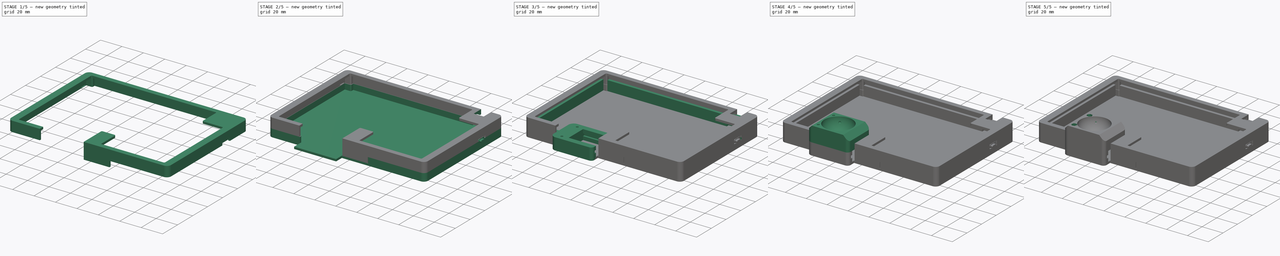
[diagram: build sequence overview — one tinted view per stage of 5, left to right]
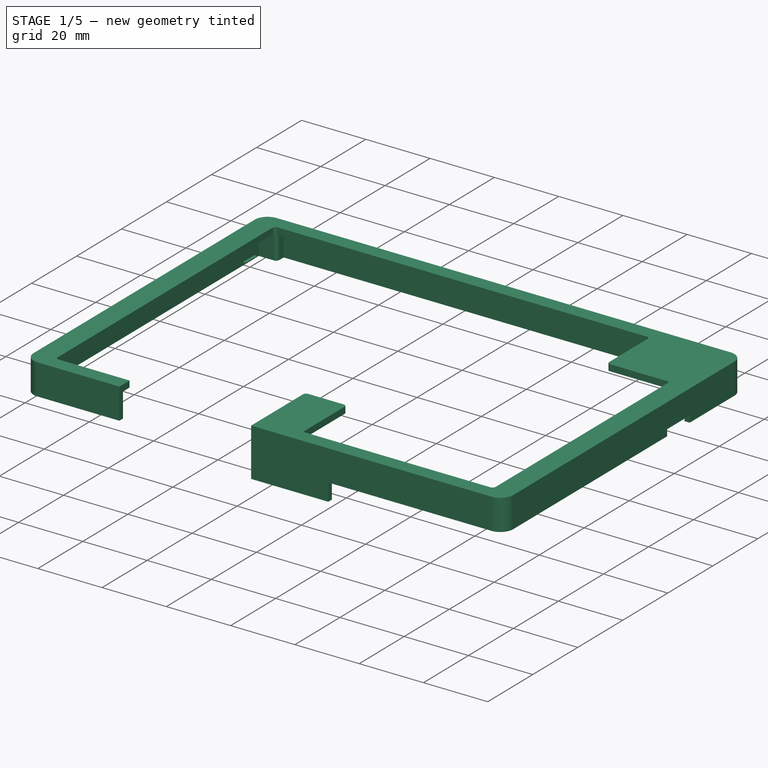
[diagram: stage 1 of 5 — iso view after this stage's code; geometry added in this stage tinted green]
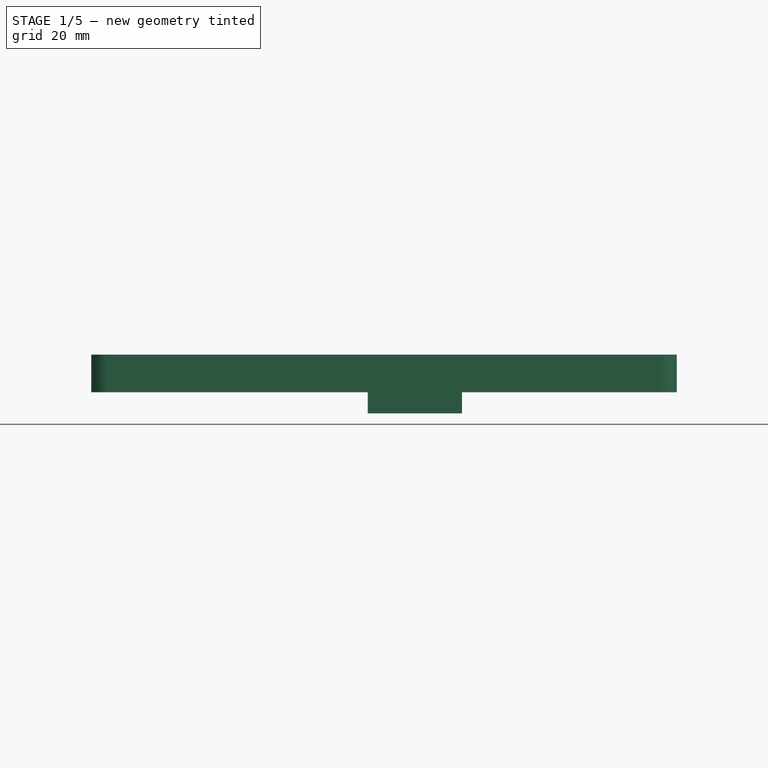
[diagram: stage 1 of 5 — front view after this stage's code; geometry added in this stage tinted green]
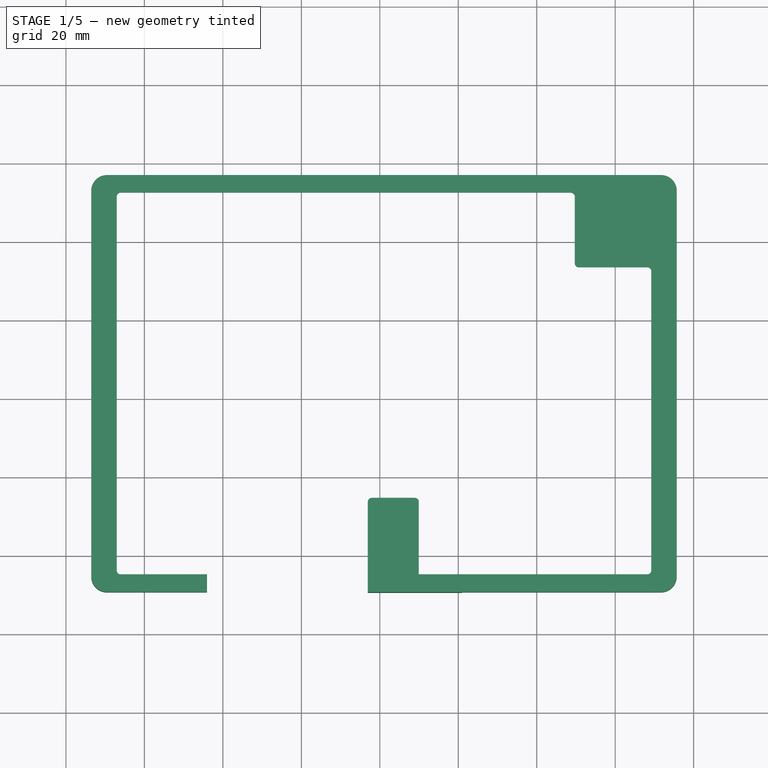
[diagram: stage 1 of 5 — top view after this stage's code; geometry added in this stage tinted green]
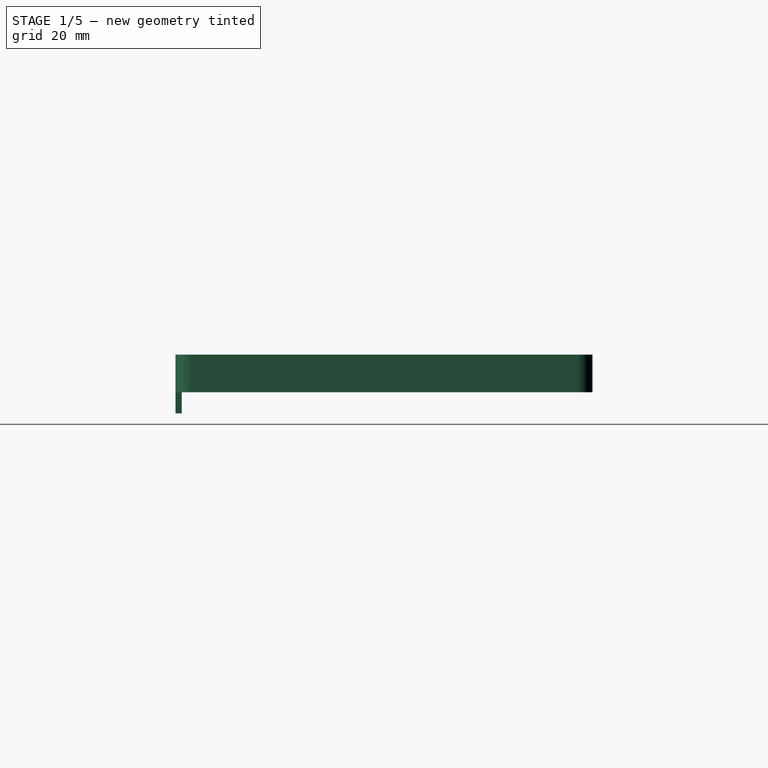
[diagram: stage 1 of 5 — right view after this stage's code; geometry added in this stage tinted green]
FCSTD DOCUMENT  (FreeCAD 1.0R39109 (Git))
Label: right
License: All rights reserved
LicenseURL: https://en.wikipedia.org/wiki/All_rights_reserved
objects: Sketcher::SketchObject×37, PartDesign::Pocket×18, PartDesign::Pad×17, Measure::MeasureLength×8, PartDesign::Fillet×7, PartDesign::Body×5, Measure::MeasureDistance×5, PartDesign::Chamfer×4, PartDesign::PolarPattern×3, PartDesign::Groove×2, PartDesign::Point×2, PartDesign::SubtractiveSphere×2, PartDesign::Line×2, Part::Feature×1, App::Part×1, Measure::MeasurePython×1, App::DocumentObjectGroup×1
note: 240 computed .brp shape members not serialized (recipe doc carries the construction recipe); baked Part::Feature solids carry a one-line shape summary decoded from their .brp

FEATURE [Part::Feature] Part__Feature  label="symphonie6_right_PCB"
  Placement = pos=(-12.2,9,-1.6) rot=(0,0,1;0rad)
  shape: bbox 144.4 x 101 x 1.6 mm, 149 faces (baked)
FEATURE [App::Part] keybaord_1  label="keybaord 1"
  Group = -> [Part__Feature]
  Origin = -> Origin005
  Placement = pos=(0,0,13) rot=(0,0,1;0rad)
FEATURE [Sketcher::SketchObject] Sketch026
  ArcFitTolerance = 1e-06
  AttachmentOffset = pos=(0,0,7.4) rot=(0,0,1;0rad)
  AttachmentSupport = -> [XY_Plane007]
  FullyConstrained = true
  MakeInternals = false
  MapMode = 5
  Placement = pos=(0,0,7.4) rot=(0,0,1;0rad)
  sketch-geometry (20):
    g0: LineSegment StartX=235.7 StartY=-27.1 StartZ=0 EndX=235.7 EndY=-125.39 EndZ=0
    g1: LineSegment StartX=86.44 StartY=-27.1 StartZ=0 EndX=86.44 EndY=-125.39 EndZ=0
    g2: ArcOfCircle CenterX=90.44 CenterY=-125.39 CenterZ=0 NormalX=0 NormalY=0 NormalZ=1 AngleXU=0 Radius=4 StartAngle=3.14159 EndAngle=4.71239
    g3: ArcOfCircle CenterX=90.44 CenterY=-27.1 CenterZ=0 NormalX=0 NormalY=0 NormalZ=1 AngleXU=0 Radius=4 StartAngle=1.5708 EndAngle=3.14159
    g4: ArcOfCircle CenterX=231.7 CenterY=-27.1 CenterZ=0 NormalX=0 NormalY=0 NormalZ=1 AngleXU=0 Radius=4 StartAngle=0 EndAngle=1.5708
    g5: ArcOfCircle CenterX=231.7 CenterY=-125.39 CenterZ=0 NormalX=0 NormalY=0 NormalZ=1 AngleXU=0 Radius=4 StartAngle=4.71239 EndAngle=6.28319
    g6: LineSegment StartX=90.44 StartY=-23.1 StartZ=0 EndX=231.7 EndY=-23.1 EndZ=0
    g7: LineSegment StartX=180.94 StartY=-129.39 StartZ=0 EndX=231.7 EndY=-129.39 EndZ=0
    g8: LineSegment StartX=115.94 StartY=-129.39 StartZ=0 EndX=90.44 EndY=-129.39 EndZ=0
    g9: LineSegment StartX=90.44 StartY=-24.7 StartZ=0 EndX=231.7 EndY=-24.7 EndZ=0
    g10: ArcOfCircle CenterX=231.7 CenterY=-27.1 CenterZ=0 NormalX=0 NormalY=0 NormalZ=1 AngleXU=0 Radius=2.4 StartAngle=3.26795e-07 EndAngle=1.5708
    g11: LineSegment StartX=234.1 StartY=-27.1 StartZ=0 EndX=234.1 EndY=-125.39 EndZ=0
    g12: ArcOfCircle CenterX=231.7 CenterY=-125.39 CenterZ=0 NormalX=0 NormalY=0 NormalZ=1 AngleXU=0 Radius=2.4 StartAngle=4.71239 EndAngle=6.28319
    g13: LineSegment StartX=231.7 StartY=-127.79 StartZ=0 EndX=180.94 EndY=-127.79 EndZ=0
    g14: ArcOfCircle CenterX=90.44 CenterY=-27.1 CenterZ=0 NormalX=0 NormalY=0 NormalZ=1 AngleXU=0 Radius=2.4 StartAngle=1.5708 EndAngle=3.14159
    g15: LineSegment StartX=88.04 StartY=-27.1 StartZ=0 EndX=88.04 EndY=-125.39 EndZ=0
    g16: ArcOfCircle CenterX=90.44 CenterY=-125.39 CenterZ=0 NormalX=0 NormalY=0 NormalZ=1 AngleXU=0 Radius=2.4 StartAngle=3.14159 EndAngle=4.71239
    g17: LineSegment StartX=90.44 StartY=-127.79 StartZ=0 EndX=115.94 EndY=-127.79 EndZ=0
    g18: LineSegment StartX=115.94 StartY=-127.79 StartZ=0 EndX=115.94 EndY=-129.39 EndZ=0
    g19: LineSegment StartX=180.94 StartY=-127.79 StartZ=0 EndX=180.94 EndY=-129.39 EndZ=0
  constraints (57):
    c: Vertical(g0)
    c: Vertical(g1)
    c: Radius(g3) = 4
    c: Radius(g2) = 4
    c: Radius(g5) = 4
    c: Radius(g4) = 4
    c: Tangent(g3,g1) = -1.5708
    c: Tangent(g2,g1) = -1.5708
    c: Tangent(g5,g0) = 1.5708
    c: Tangent(g4,g0) = 1.5708
    c: DistanceX(g3,g4) = 141.26
    c: DistanceY(g1,g1) = 98.29
    c: DistanceY(g3,g-1) = 23.1
    c: DistanceX(g-1,g1) = 86.44
    c: Coincident(g6,g3)
    c: Horizontal(g6)
    c: DistanceX(g2,g5) = 141.26
    c: Tangent(g6,g4) = 1.5708
    c: Horizontal(g7)
    c: Horizontal(g8)
    c: DistanceY(g5,g4) = 106.29
    c: Tangent(g8,g2) = 1.5708
    c: Tangent(g7,g5) = -1.5708
    c: Horizontal(g9)
    c: DistanceY(g9,g3) = 1.6
    c: DistanceX(g3,g9) = 0
    c: DistanceX(g4,g9) = 0
    c: Angle(g10) = 1.5708
    c: Coincident(g10,g4)
    c: Coincident(g10,g9)
    c: Coincident(g11,g10)
    c: Vertical(g11)
    c: DistanceY(g11,g0) = 0
    c: Angle(g12) = 1.5708
    c: Coincident(g12,g5)
    c: Coincident(g12,g11)
    c: Coincident(g13,g12)
    c: Horizontal(g13)
    c: Angle(g14) = 1.5708
    c: Coincident(g14,g3)
    c: Coincident(g14,g9)
    c: Coincident(g15,g14)
    c: Vertical(g15)
    c: DistanceY(g15,g1) = 0
    c: Angle(g16) = 1.5708
    c: Coincident(g16,g2)
    c: Coincident(g16,g15)
    c: Distance(g17) = 25.5
    c: Coincident(g17,g16)
    c: Horizontal(g17)
    c: DistanceX(g2,g8) = 25.5
    c: Coincident(g18,g17)
    c: Coincident(g18,g8)
    c: DistanceX(g8,g7) = 65
    c: DistanceX(g17,g13) = 65
    c: Coincident(g19,g13)
    c: Coincident(g19,g7)
FEATURE [PartDesign::Pad] Pad013
  Direction = (0,0,1)
  Length = 7.6
  Length2 = 10
  Profile = -> Sketch026
  ReferenceAxis = -> Sketch026 [N_Axis]
  Refine = true
  Suppressed = false
  Type = 0
FEATURE [Sketcher::SketchObject] Sketch027
  ArcFitTolerance = 1e-06
  AttachmentSupport = -> [Pad013]
  ExternalGeometry = -> [Pad013]
  FullyConstrained = true
  MakeInternals = false
  MapMode = 5
  Placement = pos=(0,0,15) rot=(0,0,1;0rad)
  sketch-geometry (4):
    g0: LineSegment StartX=180.94 StartY=-127.79 StartZ=0 EndX=156.94 EndY=-127.79 EndZ=0
    g1: LineSegment StartX=156.94 StartY=-127.79 StartZ=0 EndX=156.94 EndY=-129.39 EndZ=0
    g2: LineSegment StartX=156.94 StartY=-129.39 StartZ=0 EndX=180.94 EndY=-129.39 EndZ=0
    g3: LineSegment StartX=180.94 StartY=-129.39 StartZ=0 EndX=180.94 EndY=-127.79 EndZ=0
  constraints (11):
    c: Coincident(g0,g1)
    c: Coincident(g1,g2)
    c: Coincident(g2,g3)
    c: Coincident(g3,g0)
    c: Horizontal(g0)
    c: Horizontal(g2)
    c: Vertical(g1)
    c: Vertical(g3)
    c: Distance(g1,g3) = 24
    c: Distance(g0,g2) = 1.6
    c: Coincident(g0,g-3)
FEATURE [PartDesign::Pad] Pad014
  BaseFeature = -> Pad013
  Direction = (0,0,1)
  Length = 13
  Length2 = 10
  Profile = -> Sketch027
  ReferenceAxis = -> Sketch027 [N_Axis]
  Refine = true
  Reversed = true
  Suppressed = false
  Type = 0
FEATURE [Sketcher::SketchObject] Sketch029
  ArcFitTolerance = 1e-06
  AttachmentOffset = pos=(0,0,-7.6) rot=(0,0,1;0rad)
  AttachmentSupport = -> [Pad014]
  ExternalGeometry = -> [Pad014]
  FullyConstrained = true
  MakeInternals = false
  MapMode = 5
  Placement = pos=(0,0,7.4) rot=(0,0,1;0rad)
  sketch-geometry (4):
    g0: LineSegment StartX=230.15 StartY=-23.1 StartZ=0 EndX=207.84 EndY=-23.1 EndZ=0
    g1: LineSegment StartX=207.84 StartY=-23.1 StartZ=0 EndX=207.84 EndY=-24.7 EndZ=0
    g2: LineSegment StartX=207.84 StartY=-24.7 StartZ=0 EndX=230.15 EndY=-24.7 EndZ=0
    g3: LineSegment StartX=230.15 StartY=-24.7 StartZ=0 EndX=230.15 EndY=-23.1 EndZ=0
  constraints (12):
    c: Coincident(g0,g1)
    c: Coincident(g1,g2)
    c: Coincident(g2,g3)
    c: Coincident(g3,g0)
    c: Horizontal(g0)
    c: Horizontal(g2)
    c: Vertical(g1)
    c: PointOnObject(g0,g-3)
    c: DistanceX(g0,g-3) = 1.55
    c: DistanceY(g1,g0) = 1.6
    c: DistanceX(g0,g0) = 22.31
    c: Vertical(g3)
FEATURE [PartDesign::Pocket] Pocket009
  BaseFeature = -> Pad014
  Direction = (0,0,-1)
  Length = 7
  Length2 = 5
  Profile = -> Sketch029
  ReferenceAxis = -> Sketch029 [N_Axis]
  Refine = true
  Reversed = true
  Suppressed = false
  Type = 0
FEATURE [Sketcher::SketchObject] Sketch030
  ArcFitTolerance = 1e-06
  AttachmentSupport = -> [Pocket009]
  ExternalGeometry = -> [Pocket009]
  FullyConstrained = true
  MakeInternals = false
  MapMode = 5
  Placement = pos=(0,0,15) rot=(0,0,1;0rad)
  sketch-geometry (26):
    g0: LineSegment StartX=90.44 StartY=-23.1 StartZ=0 EndX=231.7 EndY=-23.1 EndZ=0
    g1: ArcOfCircle CenterX=90.44 CenterY=-27.1 CenterZ=0 NormalX=0 NormalY=0 NormalZ=1 AngleXU=0 Radius=4 StartAngle=1.5708 EndAngle=3.14159
    g2: LineSegment StartX=86.44 StartY=-27.1 StartZ=0 EndX=86.44 EndY=-125.39 EndZ=0
    g3: ArcOfCircle CenterX=90.44 CenterY=-125.39 CenterZ=0 NormalX=0 NormalY=0 NormalZ=1 AngleXU=0 Radius=4 StartAngle=3.14159 EndAngle=4.71239
    g4: LineSegment StartX=90.44 StartY=-129.39 StartZ=0 EndX=115.94 EndY=-129.39 EndZ=0
    g5: LineSegment StartX=156.94 StartY=-129.39 StartZ=0 EndX=231.7 EndY=-129.39 EndZ=0
    g6: ArcOfCircle CenterX=231.7 CenterY=-125.39 CenterZ=0 NormalX=0 NormalY=0 NormalZ=1 AngleXU=0 Radius=4 StartAngle=4.71239 EndAngle=6.28319
    g7: LineSegment StartX=235.7 StartY=-125.39 StartZ=0 EndX=235.7 EndY=-27.1 EndZ=0
    g8: ArcOfCircle CenterX=231.7 CenterY=-27.1 CenterZ=0 NormalX=0 NormalY=0 NormalZ=1 AngleXU=0 Radius=4 StartAngle=4e-16 EndAngle=1.5708
    g9: LineSegment StartX=115.94 StartY=-129.39 StartZ=0 EndX=115.94 EndY=-124.89 EndZ=0
    g10: LineSegment StartX=115.94 StartY=-124.89 StartZ=0 EndX=93.94 EndY=-124.89 EndZ=0
    g11: LineSegment StartX=92.94 StartY=-28.6 StartZ=0 EndX=92.94 EndY=-123.89 EndZ=0
    g12: ArcOfCircle CenterX=93.94 CenterY=-123.89 CenterZ=0 NormalX=0 NormalY=0 NormalZ=1 AngleXU=0 Radius=1 StartAngle=3.14159 EndAngle=4.71239
    g13: LineSegment StartX=93.94 StartY=-27.6 StartZ=0 EndX=208.7 EndY=-27.6 EndZ=0
    g14: ArcOfCircle CenterX=93.94 CenterY=-28.6 CenterZ=0 NormalX=0 NormalY=0 NormalZ=1 AngleXU=0 Radius=1 StartAngle=1.5708 EndAngle=3.14159
    g15: LineSegment StartX=210.7 StartY=-46.6 StartZ=0 EndX=228.2 EndY=-46.6 EndZ=0
    g16: ArcOfCircle CenterX=210.7 CenterY=-45.6 CenterZ=0 NormalX=0 NormalY=0 NormalZ=1 AngleXU=0 Radius=1 StartAngle=3.14159 EndAngle=4.71239
    g17: LineSegment StartX=209.7 StartY=-45.6 StartZ=0 EndX=209.7 EndY=-28.6 EndZ=0
    g18: ArcOfCircle CenterX=208.7 CenterY=-28.6 CenterZ=0 NormalX=0 NormalY=0 NormalZ=1 AngleXU=0 Radius=1 StartAngle=-9e-16 EndAngle=1.5708
    g19: LineSegment StartX=229.2 StartY=-47.6 StartZ=0 EndX=229.2 EndY=-123.89 EndZ=0
    g20: ArcOfCircle CenterX=228.2 CenterY=-47.6 CenterZ=0 NormalX=0 NormalY=0 NormalZ=1 AngleXU=0 Radius=1 StartAngle=-2.7e-15 EndAngle=1.5708
    g21: LineSegment StartX=169.94 StartY=-124.89 StartZ=0 EndX=228.2 EndY=-124.89 EndZ=0
    g22: ArcOfCircle CenterX=228.2 CenterY=-123.89 CenterZ=0 NormalX=0 NormalY=0 NormalZ=1 AngleXU=0 Radius=1 StartAngle=4.71239 EndAngle=6.28319
    g23: LineSegment StartX=156.94 StartY=-129.39 StartZ=0 EndX=156.94 EndY=-105.39 EndZ=0
    g24: LineSegment StartX=156.94 StartY=-105.39 StartZ=0 EndX=169.94 EndY=-105.39 EndZ=0
    g25: LineSegment StartX=169.94 StartY=-105.39 StartZ=0 EndX=169.94 EndY=-124.89 EndZ=0
  constraints (78):
    c: Coincident(g0,g-4)
    c: Coincident(g0,g-13)
    c: Coincident(g1,g-4)
    c: Coincident(g1,g0)
    c: Coincident(g2,g1)
    c: Coincident(g2,g-6)
    c: Coincident(g3,g-6)
    c: Coincident(g3,g2)
    c: Coincident(g4,g3)
    c: Coincident(g4,g-8)
    c: Coincident(g5,g-10)
    c: Coincident(g5,g-11)
    c: Coincident(g6,g-11)
    c: Coincident(g6,g5)
    c: Coincident(g8,g-13)
    c: Coincident(g8,g7)
    c: Coincident(g8,g0)
    c: Distance(g9) = 4.5
    c: Coincident(g9,g4)
    c: Vertical(g9)
    c: Coincident(g10,g9)
    c: Horizontal(g10)
    c: DistanceX(g2,g10) = 7.5
    c: Vertical(g11)
    c: DistanceX(g2,g11) = 6.5
    c: DistanceY(g3,g11) = 5.5
    c: Coincident(g12,g10)
    c: Coincident(g12,g11)
    c: Radius(g12) = 1
    c: DistanceY(g11,g0) = 5.5
    c: Horizontal(g13)
    c: DistanceY(g13,g0) = 4.5
    c: DistanceX(g1,g13) = 7.5
    c: Coincident(g14,g11)
    c: Coincident(g14,g13)
    c: Radius(g14) = 1
    c: DistanceX(g13,g7) = 27
    c: DistanceY(g16,g0) = 22.5
    c: Horizontal(g15)
    c: DistanceY(g15,g16) = 1
    c: DistanceX(g16,g15) = 1
    c: Coincident(g16,g15)
    c: Radius(g16) = 1
    c: Coincident(g17,g16)
    c: Vertical(g17)
    c: DistanceY(g17,g13) = 1
    c: Coincident(g18,g13)
    c: Coincident(g18,g17)
    c: Radius(g18) = 1
    c: DistanceX(g15,g7) = 7.5
    c: Vertical(g19)
    c: DistanceY(g19,g0) = 24.5
    c: DistanceX(g19,g7) = 6.5
    c: Coincident(g20,g15)
    c: Coincident(g20,g19)
    c: Radius(g20) = 1
    c: DistanceY(g5,g19) = 5.5
    c: Horizontal(g21)
    c: DistanceY(g5,g21) = 4.5
    c: DistanceX(g21,g6) = 7.5
    c: Coincident(g22,g19)
    c: Coincident(g22,g21)
    c: Radius(g22) = 1
    c: DistanceX(g5,g21) = 13
    c: Coincident(g5,g23)
    c: Vertical(g23)
    c: Coincident(g23,g24)
    c: Horizontal(g24)
    c: Coincident(g24,g25)
    c: Coincident(g25,g21)
    c: Vertical(g25)
    c: DistanceY(g5,g23) = 24
    c: Angle(g6) = 1.5708
    c: Angle(g8) = 1.5708
    c: Angle(g1) = 1.5708
    c: Angle(g3) = 1.5708
    c: Angle(g18) = 1.5708
    c: Coincident(g7,g6)
FEATURE [PartDesign::Pad] Pad016
  BaseFeature = -> Pocket009
  Direction = (0,0,1)
  Length = 2
  Length2 = 10
  Profile = -> Sketch030
  ReferenceAxis = -> Sketch030 [N_Axis]
  Refine = true
  Suppressed = false
  Type = 0
FEATURE [Sketcher::SketchObject] Sketch031
  ArcFitTolerance = 1e-06
  AttachmentOffset = pos=(0,0,-2) rot=(0,0,1;0rad)
  AttachmentSupport = -> [Pad016]
  ExternalGeometry = -> [Pad016]
  FullyConstrained = true
  MakeInternals = false
  MapMode = 5
  Placement = pos=(0,0,15) rot=(0,0,1;0rad)
  sketch-geometry (10):
    g0: LineSegment StartX=92.74 StartY=-27.6 StartZ=0 EndX=88.04 EndY=-27.6 EndZ=0
    g1: LineSegment StartX=93.74 StartY=-24.7 StartZ=0 EndX=93.74 EndY=-26.6 EndZ=0
    g2: ArcOfCircle CenterX=92.74 CenterY=-26.6 CenterZ=0 NormalX=0 NormalY=0 NormalZ=1 AngleXU=0 Radius=1 StartAngle=4.71239 EndAngle=6.28319
    g3: LineSegment StartX=88.04 StartY=-27.6 StartZ=0 EndX=88.04 EndY=-24.7 EndZ=0
    g4: LineSegment StartX=88.04 StartY=-24.7 StartZ=0 EndX=93.74 EndY=-24.7 EndZ=0
    g5: ArcOfCircle CenterX=229.6 CenterY=-125.59 CenterZ=0 NormalX=0 NormalY=0 NormalZ=1 AngleXU=0 Radius=1 StartAngle=1.5708 EndAngle=3.14159
    g6: LineSegment StartX=229.6 StartY=-124.59 StartZ=0 EndX=234.1 EndY=-124.59 EndZ=0
    g7: LineSegment StartX=228.6 StartY=-125.59 StartZ=0 EndX=228.6 EndY=-127.79 EndZ=0
    g8: LineSegment StartX=228.6 StartY=-127.79 StartZ=0 EndX=234.1 EndY=-127.79 EndZ=0
    g9: LineSegment StartX=234.1 StartY=-127.79 StartZ=0 EndX=234.1 EndY=-124.59 EndZ=0
  constraints (32):
    c: Horizontal(g0)
    c: Vertical(g1)
    c: Angle(g2) = 1.5708
    c: DistanceX(g0,g1) = 5.7
    c: Coincident(g2,g1)
    c: DistanceY(g0,g1) = 2.9
    c: Coincident(g0,g2)
    c: Radius(g2) = 1
    c: DistanceY(g0,g1) = 1
    c: DistanceY(g1,g-3) = 1.6
    c: DistanceX(g-4,g0) = 1.6
    c: Coincident(g3,g0)
    c: Vertical(g3)
    c: Coincident(g4,g3)
    c: Coincident(g4,g1)
    c: DistanceY(g0,g3) = 2.9
    c: Angle(g5) = 1.5708
    c: Radius(g5) = 1
    c: Coincident(g6,g5)
    c: Horizontal(g6)
    c: DistanceX(g5,g6) = 5.5
    c: Coincident(g7,g5)
    c: Vertical(g7)
    c: DistanceY(g7,g5) = 3.2
    c: Coincident(g7,g8)
    c: Horizontal(g8)
    c: Coincident(g8,g9)
    c: Coincident(g9,g6)
    c: Vertical(g9)
    c: DistanceY(g7,g5) = 2.2
    c: DistanceY(g-6,g7) = 1.6
    c: DistanceX(g6,g-5) = 1.6
FEATURE [Sketcher::SketchObject] Sketch032
  ArcFitTolerance = 1e-06
  AttachmentOffset = pos=(0,0,-2) rot=(0,0,1;0rad)
  AttachmentSupport = -> [Pad016]
  ExternalGeometry = -> [Pad016]
  FullyConstrained = true
  MakeInternals = false
  MapMode = 5
  Placement = pos=(0,0,15) rot=(0,0,1;0rad)
  sketch-geometry (5):
    g0: LineSegment StartX=88.04 StartY=-124.59 StartZ=0 EndX=92.54 EndY=-124.59 EndZ=0
    g1: ArcOfCircle CenterX=92.54 CenterY=-125.59 CenterZ=0 NormalX=0 NormalY=0 NormalZ=1 AngleXU=0 Radius=1 StartAngle=0 EndAngle=1.5708
    g2: LineSegment StartX=93.54 StartY=-125.59 StartZ=0 EndX=93.54 EndY=-127.79 EndZ=0
    g3: LineSegment StartX=88.04 StartY=-124.59 StartZ=0 EndX=88.04 EndY=-127.79 EndZ=0
    g4: LineSegment StartX=88.04 StartY=-127.79 StartZ=0 EndX=93.54 EndY=-127.79 EndZ=0
  constraints (16):
    c: Horizontal(g0)
    c: Coincident(g1,g0)
    c: Angle(g1) = 1.5708
    c: Radius(g1) = 1
    c: Coincident(g2,g1)
    c: Vertical(g2)
    c: DistanceX(g0,g1) = 5.5
    c: DistanceY(g2,g0) = 3.2
    c: Coincident(g0,g3)
    c: Vertical(g3)
    c: Coincident(g3,g4)
    c: Coincident(g4,g2)
    c: Horizontal(g4)
    c: DistanceY(g2,g1) = 2.2
    c: DistanceX(g-3,g0) = 1.6
    c: DistanceY(g-4,g2) = 1.6
FEATURE [PartDesign::Pad] Pad017
  BaseFeature = -> Pad016
  Direction = (0,0,1)
  Length = 7.6
  Length2 = 10
  Profile = -> Sketch032
  ReferenceAxis = -> Sketch032 [N_Axis]
  Refine = true
  Reversed = true
  Suppressed = false
  Type = 0
FEATURE [PartDesign::Pad] Pad018
  BaseFeature = -> Pad017
  Direction = (0,0,1)
  Length = 7.6
  Length2 = 10
  Profile = -> Sketch031
  ReferenceAxis = -> Sketch031 [N_Axis]
  Refine = true
  Reversed = true
  Suppressed = false
  Type = 0
FEATURE [Sketcher::SketchObject] Sketch033
  ArcFitTolerance = 1e-06
  AttachmentSupport = -> [Pad018]
  ExternalGeometry = -> [Pad018]
  FullyConstrained = true
  MakeInternals = false
  MapMode = 5
  Placement = pos=(235.7,0,0) rot=(0.57735,0.57735,0.57735;2.0944rad)
  sketch-geometry (4):
    g0: LineSegment StartX=-47 StartY=7.4 StartZ=0 EndX=-47 EndY=9.4 EndZ=0
    g1: LineSegment StartX=-47 StartY=9.4 StartZ=0 EndX=-57 EndY=9.4 EndZ=0
    g2: LineSegment StartX=-57 StartY=9.4 StartZ=0 EndX=-57 EndY=7.4 EndZ=0
    g3: LineSegment StartX=-57 StartY=7.4 StartZ=0 EndX=-47 EndY=7.4 EndZ=0
  constraints (12):
    c: Coincident(g0,g1)
    c: Coincident(g1,g2)
    c: Coincident(g2,g3)
    c: Coincident(g3,g0)
    c: Vertical(g0)
    c: Vertical(g2)
    c: Horizontal(g1)
    c: Horizontal(g3)
    c: DistanceX(g0) = -47
    c: DistanceX(g2,g0) = 10
    c: PointOnObject(g2,g-3)
    c: DistanceY(g2,g1) = 2
FEATURE [PartDesign::Pocket] Pocket010
  BaseFeature = -> Pad018
  Direction = (-1,0,0)
  Length = 1.6
  Length2 = 5
  Profile = -> Sketch033
  ReferenceAxis = -> Sketch033 [N_Axis]
  Refine = true
  Suppressed = false
  Type = 0
FEATURE [PartDesign::Fillet] Fillet002
  Base = -> Pocket010 [Edge104,Edge105]
  BaseFeature = -> Pocket010
  Radius = 1
  Refine = true
  SupportTransform = false
  Suppressed = false
  UseAllEdges = false
FEATURE [Sketcher::SketchObject] Sketch
  ArcFitTolerance = 1e-06
  AttachmentOffset = pos=(0,0,-1.6) rot=(0,0,1;0rad)
  AttachmentSupport = -> [Fillet002]
  ExternalGeometry = -> [Fillet002]
  FullyConstrained = true
  MakeInternals = false
  MapMode = 5
  Placement = pos=(88.04,0,0) rot=(0.57735,-0.57735,-0.57735;2.0944rad)
  sketch-geometry (8):
    g0: LineSegment StartX=29.6 StartY=7.4 StartZ=0 EndX=34.6 EndY=7.4 EndZ=0
    g1: LineSegment StartX=34.6 StartY=7.4 StartZ=0 EndX=34.6 EndY=8.4 EndZ=0
    g2: LineSegment StartX=34.6 StartY=8.4 StartZ=0 EndX=29.6 EndY=8.4 EndZ=0
    g3: LineSegment StartX=29.6 StartY=8.4 StartZ=0 EndX=29.6 EndY=7.4 EndZ=0
    g4: LineSegment StartX=122.89 StartY=7.4 StartZ=0 EndX=122.89 EndY=8.4 EndZ=0
    g5: LineSegment StartX=122.89 StartY=8.4 StartZ=0 EndX=117.89 EndY=8.4 EndZ=0
    g6: LineSegment StartX=117.89 StartY=8.4 StartZ=0 EndX=117.89 EndY=7.4 EndZ=0
    g7: LineSegment StartX=117.89 StartY=7.4 StartZ=0 EndX=122.89 EndY=7.4 EndZ=0
  constraints (24):
    c: Coincident(g0,g1)
    c: Coincident(g1,g2)
    c: Coincident(g2,g3)
    c: Coincident(g3,g0)
    c: Horizontal(g0)
    c: Horizontal(g2)
    c: Vertical(g1)
    c: Vertical(g3)
    c: Distance(g1,g3) = 5
    c: Distance(g0,g2) = 1
    c: PointOnObject(g0,g-3)
    c: DistanceX(g-4,g0) = 6.5
    c: Coincident(g4,g5)
    c: Coincident(g5,g6)
    c: Coincident(g6,g7)
    c: Coincident(g7,g4)
    c: Vertical(g4)
    c: Vertical(g6)
    c: Horizontal(g5)
    c: Horizontal(g7)
    c: Distance(g4,g6) = 5
    c: Distance(g5,g7) = 1
    c: PointOnObject(g4,g-3)
    c: DistanceX(g4,g-5) = 6.5
FEATURE [PartDesign::Pad] Pad
  BaseFeature = -> Fillet002
  Direction = (-1,0,0)
  Length = 1
  Length2 = 10
  Profile = -> Sketch
  ReferenceAxis = -> Sketch [N_Axis]
  Refine = true
  Reversed = true
  Suppressed = false
  Type = 0
FEATURE [PartDesign::Chamfer] Chamfer
  Angle = 45
  Base = -> Pad [Edge188,Edge187]
  BaseFeature = -> Pad
  ChamferType = 0
  FlipDirection = false
  Refine = true
  Size = 0.99
  Size2 = 1
  SupportTransform = false
  Suppressed = false
  UseAllEdges = false
FEATURE [Sketcher::SketchObject] Sketch034
  ArcFitTolerance = 1e-06
  AttachmentOffset = pos=(0,0,-1.6) rot=(0,0,1;0rad)
  AttachmentSupport = -> [Chamfer]
  ExternalGeometry = -> [Chamfer]
  FullyConstrained = true
  MakeInternals = false
  MapMode = 5
  Placement = pos=(234.1,0,0) rot=(0.57735,0.57735,0.57735;2.0944rad)
  sketch-geometry (8):
    g0: LineSegment StartX=-122.89 StartY=7.4 StartZ=0 EndX=-117.89 EndY=7.4 EndZ=0
    g1: LineSegment StartX=-117.89 StartY=7.4 StartZ=0 EndX=-117.89 EndY=8.4 EndZ=0
    g2: LineSegment StartX=-117.89 StartY=8.4 StartZ=0 EndX=-122.89 EndY=8.4 EndZ=0
    g3: LineSegment StartX=-122.89 StartY=8.4 StartZ=0 EndX=-122.89 EndY=7.4 EndZ=0
    g4: LineSegment StartX=-63.5 StartY=7.4 StartZ=0 EndX=-63.5 EndY=8.4 EndZ=0
    g5: LineSegment StartX=-63.5 StartY=8.4 StartZ=0 EndX=-68.5 EndY=8.4 EndZ=0
    g6: LineSegment StartX=-68.5 StartY=8.4 StartZ=0 EndX=-68.5 EndY=7.4 EndZ=0
    g7: LineSegment StartX=-68.5 StartY=7.4 StartZ=0 EndX=-63.5 EndY=7.4 EndZ=0
  constraints (24):
    c: Coincident(g0,g1)
    c: Coincident(g1,g2)
    c: Coincident(g2,g3)
    c: Coincident(g3,g0)
    c: Horizontal(g0)
    c: Horizontal(g2)
    c: Vertical(g1)
    c: Vertical(g3)
    c: Distance(g1,g3) = 5
    c: Distance(g0,g2) = 1
    c: PointOnObject(g0,g-3)
    c: Coincident(g4,g5)
    c: Coincident(g5,g6)
    c: Coincident(g6,g7)
    c: Coincident(g7,g4)
    c: Vertical(g4)
    c: Vertical(g6)
    c: Horizontal(g5)
    c: Horizontal(g7)
    c: Distance(g4,g6) = 5
    c: Distance(g5,g7) = 1
    c: PointOnObject(g4,g-3)
    c: DistanceX(g-4,g0) = 6.5
    c: DistanceX(g4,g-5) = 6.5
FEATURE [PartDesign::Pad] Pad019
  BaseFeature = -> Chamfer
  Direction = (1,0,0)
  Length = 1
  Length2 = 10
  Profile = -> Sketch034
  ReferenceAxis = -> Sketch034 [N_Axis]
  Refine = true
  Reversed = true
  Suppressed = false
  Type = 0
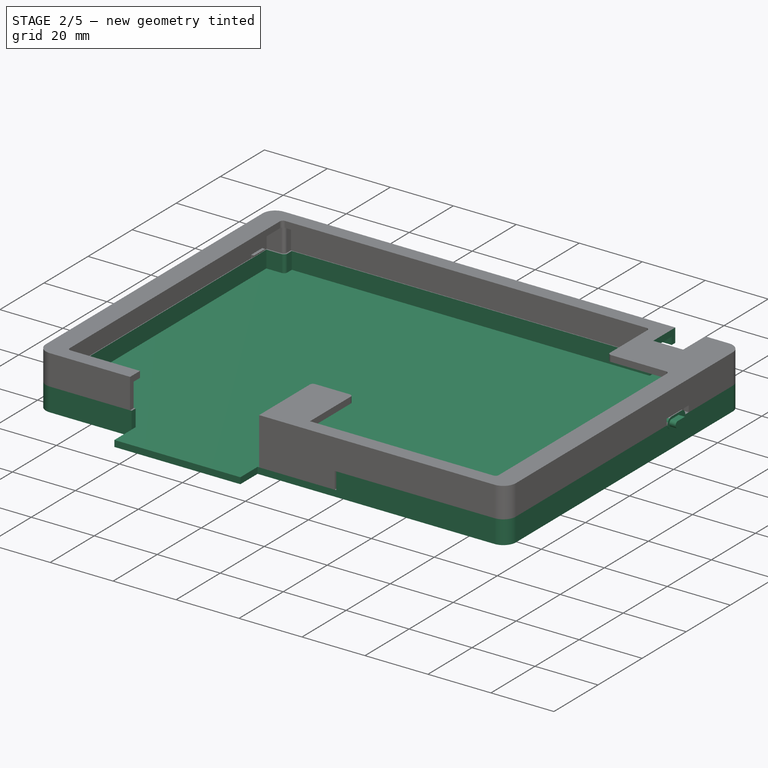
[diagram: stage 2 of 5 — iso view after this stage's code; geometry added in this stage tinted green]
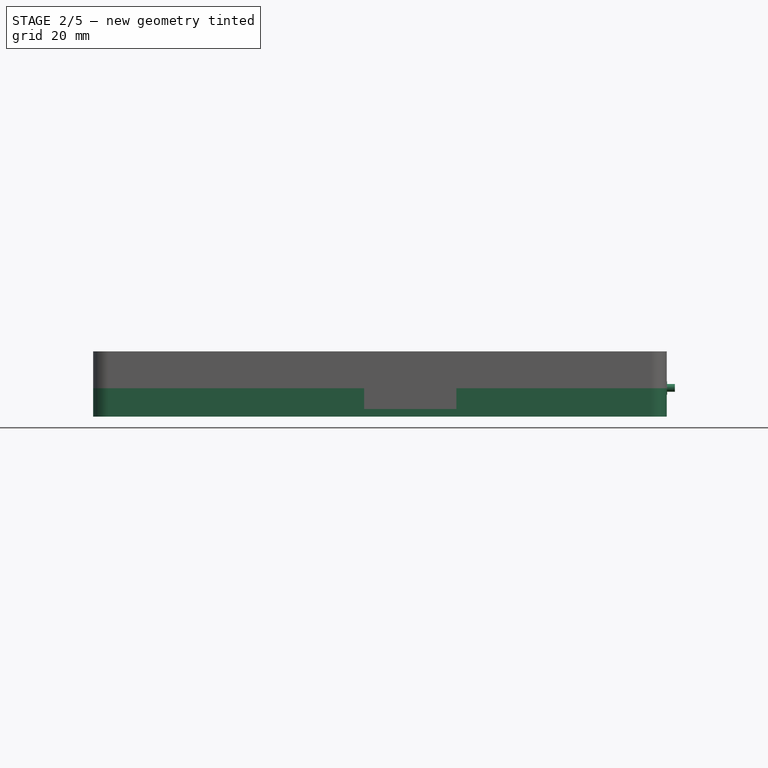
[diagram: stage 2 of 5 — front view after this stage's code; geometry added in this stage tinted green]
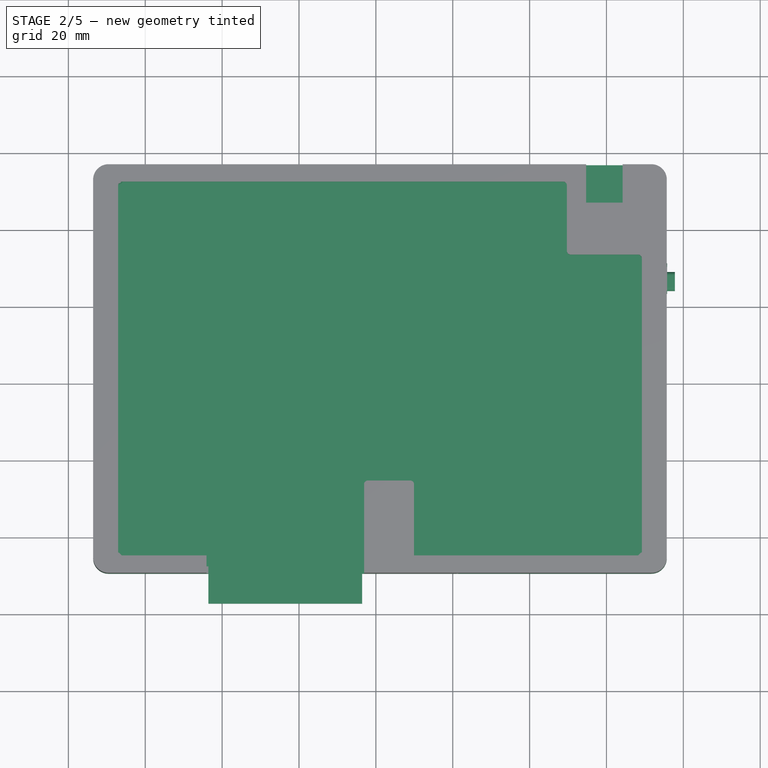
[diagram: stage 2 of 5 — top view after this stage's code; geometry added in this stage tinted green]
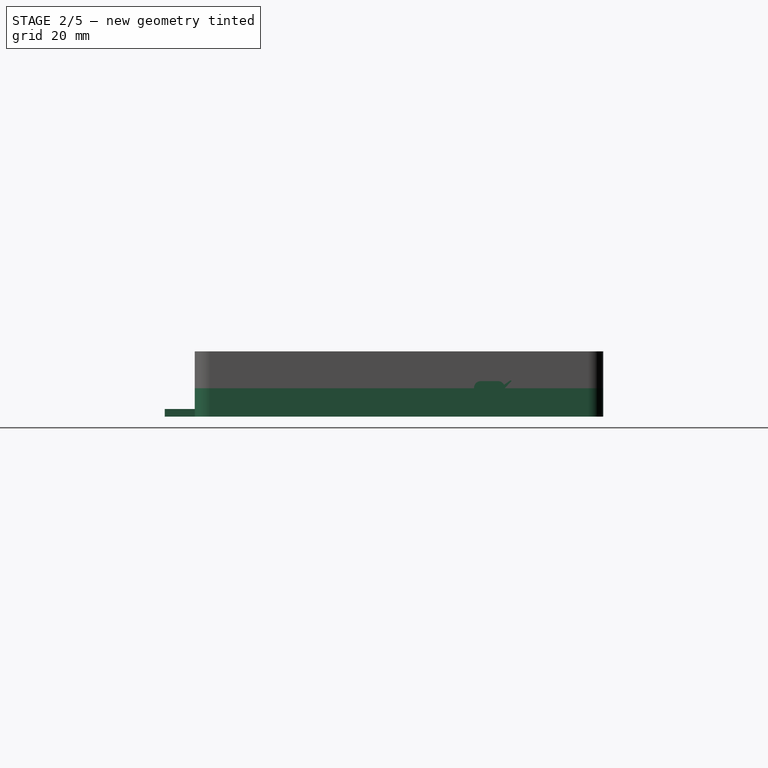
[diagram: stage 2 of 5 — right view after this stage's code; geometry added in this stage tinted green]
FEATURE [Sketcher::SketchObject] Sketch020
  ArcFitTolerance = 1e-06
  AttachmentSupport = -> [XY_Plane006]
  FullyConstrained = true
  MakeInternals = false
  MapMode = 5
  sketch-geometry (12):
    g0: LineSegment StartX=235.7 StartY=-27.1 StartZ=0 EndX=235.7 EndY=-125.39 EndZ=0
    g1: LineSegment StartX=86.44 StartY=-27.1 StartZ=0 EndX=86.44 EndY=-125.39 EndZ=0
    g2: ArcOfCircle CenterX=90.44 CenterY=-125.39 CenterZ=0 NormalX=0 NormalY=0 NormalZ=1 AngleXU=0 Radius=4 StartAngle=3.14159 EndAngle=4.71239
    g3: ArcOfCircle CenterX=90.44 CenterY=-27.1 CenterZ=0 NormalX=0 NormalY=0 NormalZ=1 AngleXU=0 Radius=4 StartAngle=1.5708 EndAngle=3.14159
    g4: ArcOfCircle CenterX=231.7 CenterY=-27.1 CenterZ=0 NormalX=0 NormalY=0 NormalZ=1 AngleXU=0 Radius=4 StartAngle=1e-16 EndAngle=1.5708
    g5: ArcOfCircle CenterX=231.7 CenterY=-125.39 CenterZ=0 NormalX=0 NormalY=0 NormalZ=1 AngleXU=0 Radius=4 StartAngle=4.71239 EndAngle=6.28319
    g6: LineSegment StartX=90.44 StartY=-23.1 StartZ=0 EndX=231.7 EndY=-23.1 EndZ=0
    g7: LineSegment StartX=156.44 StartY=-129.39 StartZ=0 EndX=156.44 EndY=-137.19 EndZ=0
    g8: LineSegment StartX=116.44 StartY=-137.19 StartZ=0 EndX=156.44 EndY=-137.19 EndZ=0
    g9: LineSegment StartX=116.44 StartY=-129.39 StartZ=0 EndX=116.44 EndY=-137.19 EndZ=0
    g10: LineSegment StartX=156.44 StartY=-129.39 StartZ=0 EndX=231.7 EndY=-129.39 EndZ=0
    g11: LineSegment StartX=116.44 StartY=-129.39 StartZ=0 EndX=90.44 EndY=-129.39 EndZ=0
  constraints (33):
    c: Vertical(g0)
    c: Vertical(g1)
    c: Radius(g3) = 4
    c: Radius(g2) = 4
    c: Radius(g5) = 4
    c: Radius(g4) = 4
    c: Tangent(g3,g1) = -1.5708
    c: Tangent(g2,g1) = -1.5708
    c: Tangent(g5,g0) = 1.5708
    c: Tangent(g4,g0) = 1.5708
    c: DistanceX(g3,g4) = 141.26
    c: DistanceY(g1,g1) = 98.29
    c: DistanceY(g3,g-1) = 23.1
    c: DistanceX(g-1,g1) = 86.44
    c: Coincident(g6,g3)
    c: Horizontal(g6)
    c: DistanceX(g2,g5) = 141.26
    c: Tangent(g6,g4) = 1.5708
    c: Vertical(g7)
    c: Horizontal(g8)
    c: Coincident(g7,g8)
    c: DistanceY(g8,g-1) = 137.19
    c: Coincident(g9,g8)
    c: Vertical(g9)
    c: DistanceX(g8,g7) = 40
    c: DistanceX(g2,g8) = 26
    c: Coincident(g10,g7)
    c: Horizontal(g10)
    c: Coincident(g11,g9)
    c: Horizontal(g11)
    c: DistanceY(g5,g4) = 106.29
    c: Tangent(g11,g2) = 1.5708
    c: Tangent(g10,g5) = -1.5708
FEATURE [PartDesign::Pad] Pad010
  Direction = (0,0,1)
  Length = 2
  Length2 = 10
  Profile = -> Sketch020
  ReferenceAxis = -> Sketch020 [N_Axis]
  Refine = true
  Suppressed = false
  Type = 0
FEATURE [Sketcher::SketchObject] Sketch021
  ArcFitTolerance = 1e-06
  AttachmentSupport = -> [Pad010]
  FullyConstrained = true
  MakeInternals = false
  MapMode = 5
  Placement = pos=(0,0,2) rot=(0,0,1;0rad)
  sketch-geometry (30):
    g0: LineSegment StartX=235.7 StartY=-27.1 StartZ=0 EndX=235.7 EndY=-125.39 EndZ=0
    g1: LineSegment StartX=86.44 StartY=-27.1 StartZ=0 EndX=86.44 EndY=-125.39 EndZ=0
    g2: ArcOfCircle CenterX=90.44 CenterY=-125.39 CenterZ=0 NormalX=0 NormalY=0 NormalZ=1 AngleXU=0 Radius=4 StartAngle=3.14159 EndAngle=4.71239
    g3: ArcOfCircle CenterX=90.44 CenterY=-27.1 CenterZ=0 NormalX=0 NormalY=0 NormalZ=1 AngleXU=0 Radius=4 StartAngle=1.5708 EndAngle=3.14159
    g4: ArcOfCircle CenterX=231.7 CenterY=-27.1 CenterZ=0 NormalX=0 NormalY=0 NormalZ=1 AngleXU=0 Radius=4 StartAngle=4e-16 EndAngle=1.5708
    g5: ArcOfCircle CenterX=231.7 CenterY=-125.39 CenterZ=0 NormalX=0 NormalY=0 NormalZ=1 AngleXU=0 Radius=4 StartAngle=4.71239 EndAngle=6.28319
    g6: LineSegment StartX=230.15 StartY=-24.9 StartZ=0 EndX=233.9 EndY=-24.9 EndZ=0
    g7: LineSegment StartX=207.84 StartY=-24.9 StartZ=0 EndX=207.84 EndY=-23.1 EndZ=0
    g8: LineSegment StartX=230.15 StartY=-24.9 StartZ=0 EndX=230.15 EndY=-23.1 EndZ=0
    g9: LineSegment StartX=228 StartY=-127.59 StartZ=0 EndX=228 EndY=-124.99 EndZ=0
    g10: LineSegment StartX=233.9 StartY=-123.99 StartZ=0 EndX=233.9 EndY=-24.9 EndZ=0
    g11: LineSegment StartX=93.14 StartY=-28 StartZ=0 EndX=88.24 EndY=-28 EndZ=0
    g12: LineSegment StartX=88.24 StartY=-28 StartZ=0 EndX=88.24 EndY=-123.99 EndZ=0
    g13: LineSegment StartX=88.24 StartY=-123.99 StartZ=0 EndX=93.14 EndY=-123.99 EndZ=0
    g14: LineSegment StartX=94.14 StartY=-24.9 StartZ=0 EndX=94.14 EndY=-27 EndZ=0
    g15: LineSegment StartX=207.84 StartY=-24.9 StartZ=0 EndX=94.14 EndY=-24.9 EndZ=0
    g16: LineSegment StartX=233.9 StartY=-123.99 StartZ=0 EndX=229 EndY=-123.99 EndZ=0
    g17: ArcOfCircle CenterX=229 CenterY=-124.99 CenterZ=0 NormalX=0 NormalY=0 NormalZ=1 AngleXU=0 Radius=1 StartAngle=1.5708 EndAngle=3.14159
    g18: ArcOfCircle CenterX=93.14 CenterY=-27 CenterZ=0 NormalX=0 NormalY=0 NormalZ=1 AngleXU=0 Radius=1 StartAngle=4.71239 EndAngle=6.28319
    g19: LineSegment StartX=90.44 StartY=-23.1 StartZ=0 EndX=207.84 EndY=-23.1 EndZ=0
    g20: LineSegment StartX=230.15 StartY=-23.1 StartZ=0 EndX=231.7 EndY=-23.1 EndZ=0
    g21: ArcOfCircle CenterX=93.14 CenterY=-124.99 CenterZ=0 NormalX=0 NormalY=0 NormalZ=1 AngleXU=0 Radius=1 StartAngle=4e-16 EndAngle=1.5708
    g22: LineSegment [constr] StartX=93.14 StartY=-124.99 StartZ=0 EndX=94.14 EndY=-124.99 EndZ=0
    g23: LineSegment StartX=94.14 StartY=-124.99 StartZ=0 EndX=94.14 EndY=-127.59 EndZ=0
    g24: LineSegment StartX=231.7 StartY=-129.39 StartZ=0 EndX=181.44 EndY=-129.39 EndZ=0
    g25: LineSegment StartX=228 StartY=-127.59 StartZ=0 EndX=181.44 EndY=-127.59 EndZ=0
    g26: LineSegment StartX=181.44 StartY=-127.59 StartZ=0 EndX=181.44 EndY=-129.39 EndZ=0
    g27: LineSegment StartX=90.44 StartY=-129.39 StartZ=0 EndX=116.44 EndY=-129.39 EndZ=0
    g28: LineSegment StartX=116.44 StartY=-129.39 StartZ=0 EndX=116.44 EndY=-127.59 EndZ=0
    g29: LineSegment StartX=116.44 StartY=-127.59 StartZ=0 EndX=94.14 EndY=-127.59 EndZ=0
  constraints (93):
    c: Vertical(g0)
    c: Vertical(g1)
    c: Radius(g3) = 4
    c: Radius(g2) = 4
    c: Radius(g5) = 4
    c: Radius(g4) = 4
    c: Tangent(g3,g1) = -1.5708
    c: Tangent(g2,g1) = -1.5708
    c: Tangent(g5,g0) = 1.5708
    c: Tangent(g4,g0) = 1.5708
    c: DistanceX(g3,g4) = 141.26
    c: DistanceY(g1,g1) = 98.29
    c: DistanceY(g3,g-1) = 23.1
    c: DistanceX(g-1,g1) = 86.44
    c: Horizontal(g6)
    c: Vertical(g7)
    c: Vertical(g8)
    c: Vertical(g9)
    c: Vertical(g10)
    c: Horizontal(g11)
    c: Horizontal(g13)
    c: Vertical(g14)
    c: Horizontal(g15)
    c: Horizontal(g16)
    c: Coincident(g19,g3)
    c: Coincident(g19,g7)
    c: Horizontal(g19)
    c: Coincident(g20,g8)
    c: Coincident(g20,g4)
    c: Horizontal(g20)
    c: DistanceY(g7,g7) = 1.8
    c: DistanceY(g5,g9) = 1.8
    c: DistanceX(g1,g12) = 1.8
    c: Coincident(g13,g12)
    c: Coincident(g21,g13)
    c: Angle(g21) = 1.5708
    c: DistanceY(g14,g3) = 1.8
    c: DistanceX(g1,g11) = 1.8
    c: Angle(g18) = 1.5708
    c: DistanceX(g14,g7) = 113.7
    c: DistanceY(g6,g8) = 1.8
    c: DistanceX(g6,g0) = 1.8
    c: Coincident(g10,g6)
    c: Coincident(g16,g10)
    c: Angle(g17) = 1.5708
    c: DistanceY(g9,g10) = 3.6
    c: DistanceY(g23,g12) = 3.6
    c: DistanceX(g11,g14) = 5.9
    c: DistanceY(g8,g7) = 0
    c: Coincident(g6,g8)
    c: DistanceX(g-1,g0) = 235.7
    c: DistanceX(g8,g4) = 1.55
    c: DistanceX(g9,g10) = 5.9
    c: Coincident(g15,g14)
    c: Coincident(g18,g14)
    c: Coincident(g11,g12)
    c: DistanceY(g11,g14) = 3.1
    c: Coincident(g11,g18)
    c: Radius(g18) = 1
    c: Radius(g17) = 1
    c: Radius(g21) = 1
    c: Coincident(g22,g21)
    c: Coincident(g22,g21)
    c: Horizontal(g22)
    c: Coincident(g23,g21)
    c: Vertical(g23)
    c: Tangent(g16,g17) = -1.5708
    c: Tangent(g9,g17) = 1.5708
    c: DistanceX(g12,g23) = 5.9
    c: PointOnObject(g15,g7)
    c: Angle(g3) = 1.5708
    c: DistanceY(g11,g14) = 1
    c: DistanceX(g-1,g27) = 116.44
    c: Coincident(g24,g5)
    c: Horizontal(g24)
    c: Coincident(g25,g9)
    c: Horizontal(g25)
    c: Coincident(g26,g25)
    c: Coincident(g26,g24)
    c: Vertical(g26)
    c: Coincident(g27,g2)
    c: Horizontal(g27)
    c: Distance(g28) = 1.8
    c: Vertical(g28)
    c: Coincident(g29,g28)
    c: Coincident(g29,g23)
    c: Horizontal(g29)
    c: DistanceX(g1,g2) = 4
    c: DistanceX(g5,g0) = 4
    c: DistanceY(g5,g8) = 106.29
    c: PointOnObject(g27,g28)
    c: DistanceY(g27,g28) = 1.8
    c: DistanceX(g27,g24) = 65
FEATURE [PartDesign::Pad] Pad011
  BaseFeature = -> Pad010
  Direction = (0,0,1)
  Length = 5.4
  Length2 = 10
  Profile = -> Sketch021
  ReferenceAxis = -> Sketch021 [N_Axis]
  Refine = true
  Suppressed = false
  Type = 0
FEATURE [PartDesign::Chamfer] Chamfer001
  Angle = 45
  Base = -> Pad019 [Edge218,Edge217]
  BaseFeature = -> Pad019
  ChamferType = 0
  FlipDirection = false
  Refine = true
  Size = 0.99
  Size2 = 1
  SupportTransform = false
  Suppressed = false
  UseAllEdges = false
FEATURE [Sketcher::SketchObject] Sketch041
  ArcFitTolerance = 1e-06
  AttachmentSupport = -> [Chamfer001]
  ExternalGeometry = -> [Chamfer001]
  FullyConstrained = true
  MakeInternals = false
  MapMode = 5
  Placement = pos=(0,0,17) rot=(0,0,1;0rad)
  sketch-geometry (4):
    g0: LineSegment StartX=224.2 StartY=-23.1 StartZ=0 EndX=214.7 EndY=-23.1 EndZ=0
    g1: LineSegment StartX=214.7 StartY=-23.1 StartZ=0 EndX=214.7 EndY=-33.1 EndZ=0
    g2: LineSegment StartX=214.7 StartY=-33.1 StartZ=0 EndX=224.2 EndY=-33.1 EndZ=0
    g3: LineSegment StartX=224.2 StartY=-33.1 StartZ=0 EndX=224.2 EndY=-23.1 EndZ=0
  constraints (12):
    c: PointOnObject(g0,g-4)
    c: PointOnObject(g0,g-4)
    c: DistanceX(g0,g-3) = 11.5
    c: DistanceX(g0,g0) = 9.5
    c: Coincident(g0,g1)
    c: Vertical(g1)
    c: Coincident(g1,g2)
    c: Horizontal(g2)
    c: Coincident(g2,g3)
    c: Coincident(g3,g0)
    c: Vertical(g3)
    c: DistanceY(g1,g0) = 10
FEATURE [PartDesign::Pocket] Pocket016
  BaseFeature = -> Chamfer001
  Direction = (0,0,-1)
  Length = 2.6
  Length2 = 5
  Profile = -> Sketch041
  ReferenceAxis = -> Sketch041 [N_Axis]
  Refine = true
  Suppressed = false
  Type = 0
FEATURE [Sketcher::SketchObject] Sketch052
  ArcFitTolerance = 1e-06
  AttachmentOffset = pos=(-0.5,0.8,232) rot=(0,0,1;0rad)
  AttachmentSupport = -> [YZ_Plane009]
  FullyConstrained = true
  MakeInternals = false
  MapMode = 5
  Placement = pos=(232,-0.5,0.8) rot=(0.57735,0.57735,0.57735;2.0944rad)
  sketch-geometry (4):
    g0: LineSegment StartX=-59.22 StartY=9.7 StartZ=0 EndX=-59.22 EndY=3.7 EndZ=0
    g1: LineSegment StartX=-59.22 StartY=3.7 StartZ=0 EndX=-45.22 EndY=3.7 EndZ=0
    g2: LineSegment StartX=-45.22 StartY=3.7 StartZ=0 EndX=-45.22 EndY=9.7 EndZ=0
    g3: LineSegment StartX=-45.22 StartY=9.7 StartZ=0 EndX=-59.22 EndY=9.7 EndZ=0
  constraints (12):
    c: Coincident(g0,g1)
    c: Coincident(g1,g2)
    c: Coincident(g2,g3)
    c: Coincident(g3,g0)
    c: Vertical(g0)
    c: Vertical(g2)
    c: Horizontal(g1)
    c: Horizontal(g3)
    c: DistanceX(g0,g2) = 14
    c: DistanceY(g1,g2) = 6
    c: DistanceX(g0) = -59.22
    c: DistanceY(g0) = 9.7
FEATURE [PartDesign::Pad] Pad022
  Direction = (1,0,0)
  Length = 2
  Length2 = 10
  Placement = pos=(0,0,0) rot=(1,1,1;2.0944rad)
  Profile = -> Sketch052
  ReferenceAxis = -> Sketch052 [N_Axis]
  Refine = true
  Suppressed = false
  Type = 0
FEATURE [Sketcher::SketchObject] Sketch053
  ArcFitTolerance = 1e-06
  AttachmentSupport = -> [Pad022]
  ExternalGeometry = -> [Pad022]
  FullyConstrained = true
  MakeInternals = false
  MapMode = 5
  Placement = pos=(234,-5.2e-14,2.6e-14) rot=(0.57735,0.57735,0.57735;2.0944rad)
  sketch-geometry (4):
    g0: ArcOfCircle CenterX=-54.97 CenterY=7.5 CenterZ=0 NormalX=0 NormalY=0 NormalZ=1 AngleXU=0 Radius=1.75 StartAngle=1.5708 EndAngle=4.71239
    g1: ArcOfCircle CenterX=-50.47 CenterY=7.5 CenterZ=0 NormalX=0 NormalY=0 NormalZ=1 AngleXU=0 Radius=1.75 StartAngle=4.71239 EndAngle=7.85398
    g2: LineSegment StartX=-54.97 StartY=9.25 StartZ=0 EndX=-50.47 EndY=9.25 EndZ=0
    g3: LineSegment StartX=-54.97 StartY=5.75 StartZ=0 EndX=-50.47 EndY=5.75 EndZ=0
  constraints (10):
    c: Tangent(g0,g2) = 1.5708
    c: Tangent(g0,g3) = -1.5708
    c: Tangent(g1,g2) = 1.5708
    c: Tangent(g1,g3) = -1.5708
    c: Equal(g0,g1)
    c: Horizontal(g3)
    c: Distance(g0,g1) = 4.5
    c: Radius(g0) = 1.75
    c: DistanceY(g0,g-5) = 1.25
    c: DistanceX(g1,g-3) = 4.75
FEATURE [PartDesign::Pad] Pad023
  BaseFeature = -> Pad022
  Direction = (1,0,0)
  Length = 1.8
  Length2 = 10
  Placement = pos=(0,0,0) rot=(1,1,1;2.0944rad)
  Profile = -> Sketch053
  ReferenceAxis = -> Sketch053 [N_Axis]
  Refine = true
  Suppressed = false
  Type = 0
FEATURE [Sketcher::SketchObject] Sketch054
  ArcFitTolerance = 1e-06
  AttachmentSupport = -> [Pad023]
  ExternalGeometry = -> [Pad023]
  FullyConstrained = true
  MakeInternals = false
  MapMode = 5
  Placement = pos=(235.8,-5.24e-14,2.62e-14) rot=(0.57735,0.57735,0.57735;2.0944rad)
  sketch-geometry (4):
    g0: ArcOfCircle CenterX=-54.97 CenterY=7.5 CenterZ=0 NormalX=0 NormalY=0 NormalZ=1 AngleXU=0 Radius=1 StartAngle=1.5708 EndAngle=4.71239
    g1: ArcOfCircle CenterX=-51.97 CenterY=7.5 CenterZ=0 NormalX=0 NormalY=0 NormalZ=1 AngleXU=0 Radius=1 StartAngle=4.71239 EndAngle=7.85398
    g2: LineSegment StartX=-54.97 StartY=8.5 StartZ=0 EndX=-51.97 EndY=8.5 EndZ=0
    g3: LineSegment StartX=-54.97 StartY=6.5 StartZ=0 EndX=-51.97 EndY=6.5 EndZ=0
  constraints (9):
    c: Tangent(g0,g2) = 1.5708
    c: Tangent(g0,g3) = -1.5708
    c: Tangent(g1,g2) = 1.5708
    c: Tangent(g1,g3) = -1.5708
    c: Equal(g0,g1)
    c: Horizontal(g3)
    c: Distance(g0,g1) = 3
    c: Radius(g0) = 1
    c: Coincident(g0,g-3)
FEATURE [PartDesign::Pad] Pad024
  BaseFeature = -> Pad023
  Direction = (1,0,0)
  Length = 2
  Length2 = 10
  Placement = pos=(0,0,0) rot=(1,1,1;2.0944rad)
  Profile = -> Sketch054
  ReferenceAxis = -> Sketch054 [N_Axis]
  Refine = true
  Suppressed = false
  Type = 0
FEATURE [PartDesign::Body] Body004  label="BottomCase"
  AllowCompound = false
  Group = -> [Sketch020,Pad010,Sketch021,Pad011,Sketch023,Pad012,Sketch024,Pocket,Sketch025,Pocket008,Sketch028,Pad015,Fillet,Fillet001,Sketch035,Pocket011,Sketch036,Pocket012,Sketch037,Pocket013,Sketch038,Pocket014,Sketch051,Pocket023,Sketch055,Pocket024]
  Origin = -> Origin006
  Tip = -> Pocket024
FEATURE [Measure::MeasureLength] Length002  label="Length002: 9.40 mm"
  Elements = -> [Body004]
  Length = 9.4
FEATURE [Measure::MeasureLength] Length  label="Length: 7.40 mm"
  Elements = -> [Body004]
  Length = 7.4
FEATURE [Measure::MeasureLength] Length004  label="Length004: 9.60 mm"
  Elements = -> [Body004]
  Length = 9.6
FEATURE [Measure::MeasureDistance] Distance  label="Distance: 7.40 mm"
  Distance = 7.4
  DistanceX = 4.263e-13
  DistanceY = 2.132e-13
  DistanceZ = 7.4
  Element1 = -> Body004 [Pad015.?Edge16]
  Element2 = -> Body004 [Pad015.Edge3]
  Position1 = (235.7,-27.1,7.4)
  Position2 = (235.7,-27.1,0)
FEATURE [Measure::MeasureLength] Length006  label="Length006: 11.40 mm"
  Elements = -> [Body004]
  Length = 11.4
FEATURE [Measure::MeasureLength] Length007  label="Length007: 8.87 mm"
  Elements = -> [Body004]
  Length = 8.87
FEATURE [Measure::MeasureLength] Length008  label="Length008: 4.00 mm"
  Elements = -> [Body004]
  Length = 4
FEATURE [Sketcher::SketchObject] Sketch056
  ArcFitTolerance = 1e-06
  AttachmentOffset = pos=(0,0,-5.8) rot=(0,0,1;0rad)
  AttachmentSupport = -> [Pad024]
  ExternalGeometry = -> [Pad024]
  FullyConstrained = true
  MakeInternals = false
  MapMode = 5
  Placement = pos=(232,-5.28e-14,2.64e-14) rot=(0.57735,0.57735,0.57735;2.0944rad)
  sketch-geometry (5):
    g0: LineSegment StartX=-54.97 StartY=9 StartZ=0 EndX=-54.97 EndY=6 EndZ=0
    g1: LineSegment StartX=-54.97 StartY=6 StartZ=0 EndX=-51.97 EndY=6 EndZ=0
    g2: LineSegment StartX=-51.97 StartY=6 StartZ=0 EndX=-51.97 EndY=9 EndZ=0
    g3: LineSegment StartX=-51.97 StartY=9 StartZ=0 EndX=-54.97 EndY=9 EndZ=0
    g4: LineSegment [constr] StartX=-51.97 StartY=9 StartZ=0 EndX=-51.97 EndY=8.5 EndZ=0
  constraints (13):
    c: Coincident(g0,g1)
    c: Coincident(g1,g2)
    c: Coincident(g2,g3)
    c: Coincident(g3,g0)
    c: Vertical(g0)
    c: Vertical(g2)
    c: Horizontal(g1)
    c: Horizontal(g3)
    c: Distance(g0,g2) = 3
    c: Distance(g1,g3) = 3
    c: Coincident(g4,g2)
    c: Coincident(g4,g-3)
    c: Symmetric(g0,g0,g-5)
FEATURE [PartDesign::Pocket] Pocket025
  BaseFeature = -> Pad024
  Direction = (-1,0,0)
  Length = 2
  Length2 = 5
  Placement = pos=(0,0,0) rot=(1,1,1;2.0944rad)
  Profile = -> Sketch056
  ReferenceAxis = -> Sketch056 [N_Axis]
  Refine = true
  Reversed = true
  Suppressed = false
  Type = 0
FEATURE [PartDesign::PolarPattern] PolarPattern002
  Angle = 360
  Axis = -> Z_Axis009
  BaseFeature = -> Pocket025
  Mode = 0
  Occurrences = 2
  Offset = 120
  Placement = pos=(0,0,0) rot=(1,1,1;2.0944rad)
  Refine = true
  Suppressed = false
  TransformMode = 1
FEATURE [PartDesign::Body] Body007  label="Switch"
  AllowCompound = false
  Group = -> [Sketch052,Pad022,Sketch053,Pad023,Sketch054,Pad024,Sketch056,Pocket025,PolarPattern002]
  Origin = -> Origin009
  Tip = -> PolarPattern002
FEATURE [Sketcher::SketchObject] Sketch057
  ArcFitTolerance = 1e-06
  AttachmentSupport = -> [Pocket016]
  ExternalGeometry = -> [Pocket016]
  FullyConstrained = true
  MakeInternals = false
  MapMode = 5
  Placement = pos=(0,0,14.4) rot=(1,0,0;3.14159rad)
  sketch-geometry (8):
    g0: LineSegment StartX=207.84 StartY=24.7 StartZ=0 EndX=207.84 EndY=23.1 EndZ=0
    g1: LineSegment StartX=207.84 StartY=23.1 StartZ=0 EndX=214.7 EndY=23.1 EndZ=0
    g2: LineSegment StartX=214.7 StartY=23.1 StartZ=0 EndX=214.7 EndY=24.7 EndZ=0
    g3: LineSegment StartX=214.7 StartY=24.7 StartZ=0 EndX=207.84 EndY=24.7 EndZ=0
    g4: LineSegment StartX=224.2 StartY=24.7 StartZ=0 EndX=224.2 EndY=23.1 EndZ=0
    g5: LineSegment StartX=224.2 StartY=23.1 StartZ=0 EndX=230.15 EndY=23.1 EndZ=0
    g6: LineSegment StartX=230.15 StartY=23.1 StartZ=0 EndX=230.15 EndY=24.7 EndZ=0
    g7: LineSegment StartX=230.15 StartY=24.7 StartZ=0 EndX=224.2 EndY=24.7 EndZ=0
  constraints (20):
    c: Coincident(g0,g1)
    c: Coincident(g1,g2)
    c: Coincident(g2,g3)
    c: Coincident(g3,g0)
    c: Vertical(g0)
    c: Vertical(g2)
    c: Horizontal(g1)
    c: Horizontal(g3)
    c: Coincident(g0,g-3)
    c: Coincident(g1,g-4)
    c: Coincident(g4,g5)
    c: Coincident(g5,g6)
    c: Coincident(g6,g7)
    c: Coincident(g7,g4)
    c: Vertical(g4)
    c: Vertical(g6)
    c: Horizontal(g5)
    c: Horizontal(g7)
    c: Coincident(g4,g-5)
    c: Coincident(g5,g-6)
FEATURE [PartDesign::Pad] Pad025
  BaseFeature = -> Pocket016
  Direction = (0,0,-1)
  Length = 1.8
  Length2 = 10
  Profile = -> Sketch057
  ReferenceAxis = -> Sketch057 [N_Axis]
  Refine = true
  Suppressed = false
  Type = 0
FEATURE [PartDesign::Body] Body005  label="TopCover"
  AllowCompound = false
  Group = -> [Sketch026,Pad013,Sketch027,Pad014,Sketch029,Pocket009,Sketch030,Pad016,Sketch031,Sketch032,Pad017,Pad018,Sketch033,Pocket010,Fillet002,Sketch,Pad,Chamfer,Sketch034,Pad019,Chamfer001,Sketch041,Pocket016,Sketch057,Pad025]
  Origin = -> Origin007
  Tip = -> Pad025
FEATURE [Measure::MeasureLength] Length003  label="Length003: 7.60 mm"
  Elements = -> [Body005]
  Length = 7.6
FEATURE [Measure::MeasureLength] Length005  label="Length005: 7.60 mm"
  Elements = -> [Body005]
  Length = 7.6
FEATURE [Measure::MeasurePython] Center_of_Mass  label="Center_of_Mass: "  # WARN: FeaturePython — macro-defined, semantics opaque (R4)
  Element = -> Body005 [Sketch031.]
  Placement = pos=(90.8128,-26.1087,15) rot=(0,0,1;0rad)
  Result = (90.8128,-26.1087,15)
FEATURE [Measure::MeasureDistance] Distance001  label="Distance001: 1.60 mm"
  Distance = 1.6
  DistanceX = 1.6
  DistanceY = 0
  DistanceZ = 0
  Element1 = -> Body005 [Chamfer001.Edge194]
  Element2 = -> Body005 [Chamfer001.Edge170]
  Position1 = (86.44,-34.6,7.4)
  Position2 = (88.04,-34.6,7.4)
FEATURE [Measure::MeasureDistance] Distance002  label="Distance002: 1.80 mm"
  Distance = 1.8
  DistanceX = 1.8
  DistanceY = 0
  DistanceZ = 0
  Element1 = -> Body004 [Pocket024.Edge97]
  Element2 = -> Body004 [Pocket024.Edge50]
  Position1 = (233.9,-46.97,7.4)
  Position2 = (235.7,-46.97,7.4)
FEATURE [Measure::MeasureDistance] Distance003  label="Distance003: 2.45 mm"
  Distance = 2.45
  DistanceX = 2.45
  DistanceY = 0
  DistanceZ = 0
  Element1 = -> Body004 [Pocket024.Edge11]
  Element2 = -> Body004 [Pocket024.Edge43]
  Position1 = (233.9,-123.99,11.4)
  Position2 = (231.45,-123.99,11.4)
FEATURE [Measure::MeasureDistance] Distance004  label="Distance004: 1.80 mm"
  Distance = 1.8
  DistanceX = 1.8
  DistanceY = 0
  DistanceZ = 0
  Element1 = -> Body004 [Pocket024.Edge97]
  Element2 = -> Body004 [Pocket024.Edge50]
  Position1 = (233.9,-46.97,7.4)
  Position2 = (235.7,-46.97,7.4)
FEATURE [App::DocumentObjectGroup] Measurements
  Group = -> [Length002,Length,Length003,Length004,Length005,Center_of_Mass,Distance,Distance001,Length006,Length007,Length008,Distance002,Distance003,Distance004]
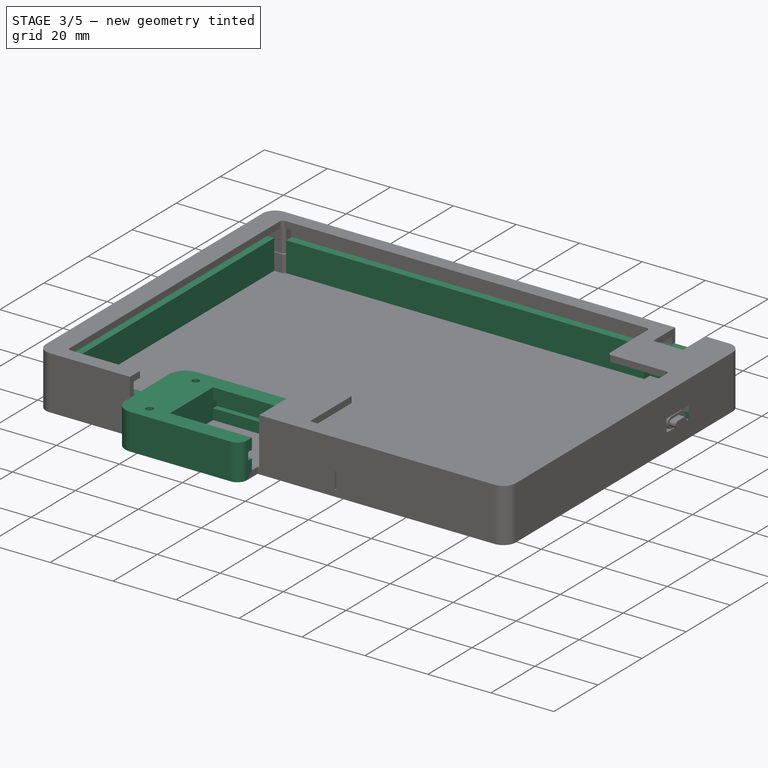
[diagram: stage 3 of 5 — iso view after this stage's code; geometry added in this stage tinted green]
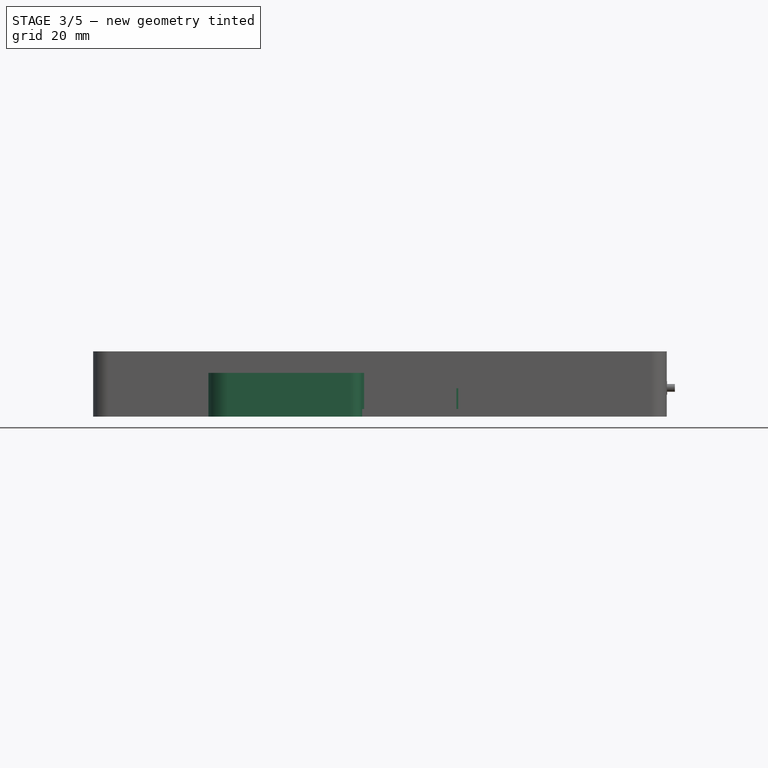
[diagram: stage 3 of 5 — front view after this stage's code; geometry added in this stage tinted green]
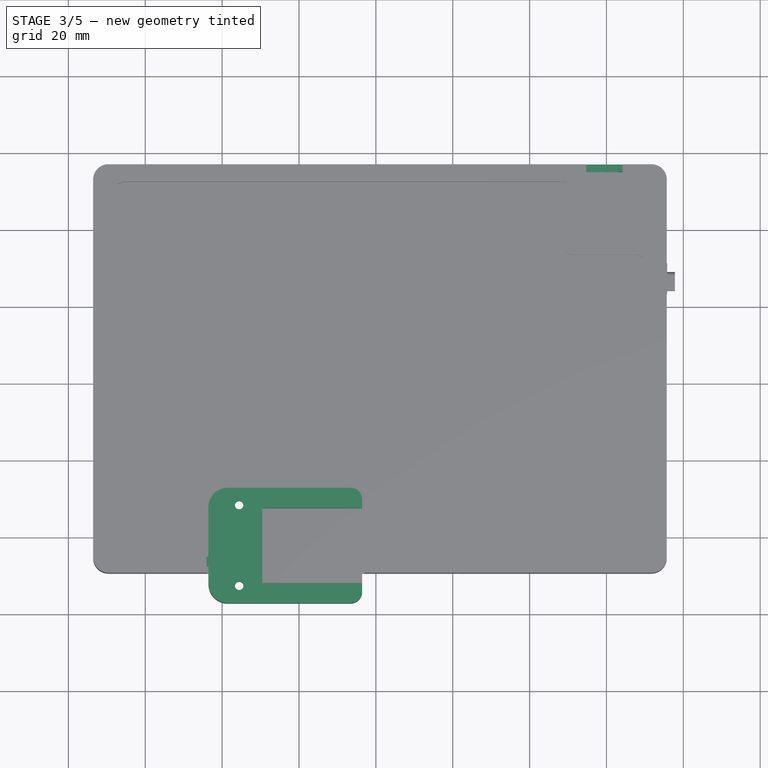
[diagram: stage 3 of 5 — top view after this stage's code; geometry added in this stage tinted green]
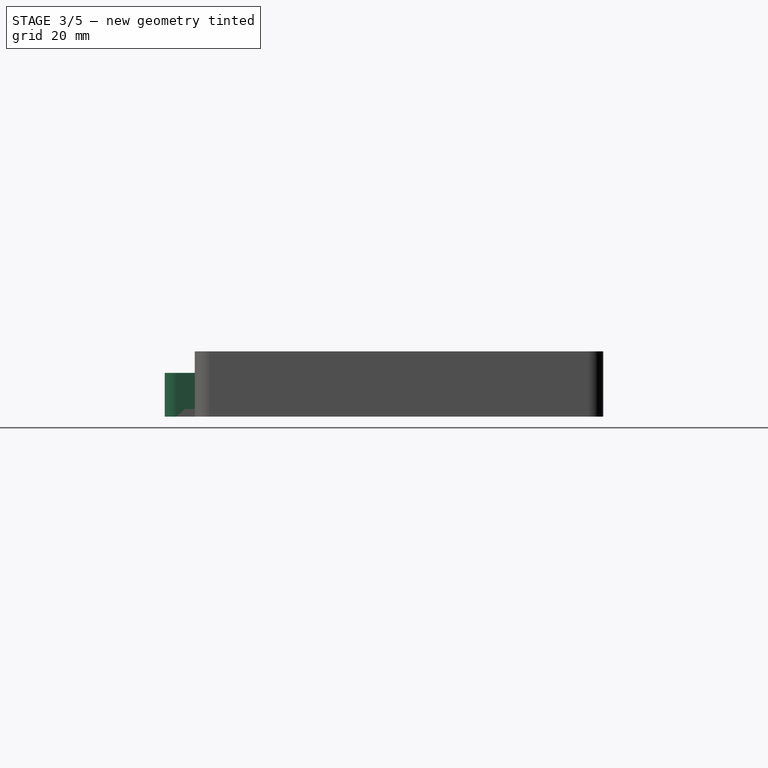
[diagram: stage 3 of 5 — right view after this stage's code; geometry added in this stage tinted green]
FEATURE [Sketcher::SketchObject] Sketch023
  ArcFitTolerance = 1e-06
  AttachmentSupport = -> [Pad011]
  ExternalGeometry = -> [Pad011]
  FullyConstrained = true
  MakeInternals = false
  MapMode = 5
  Placement = pos=(0,0,2) rot=(0,0,1;0rad)
  sketch-geometry (24):
    g0: LineSegment StartX=116.44 StartY=-137.19 StartZ=0 EndX=116.44 EndY=-107.19 EndZ=0
    g1: LineSegment StartX=116.44 StartY=-107.19 StartZ=0 EndX=156.44 EndY=-107.19 EndZ=0
    g2: LineSegment StartX=156.44 StartY=-107.19 StartZ=0 EndX=156.44 EndY=-137.19 EndZ=0
    g3: LineSegment StartX=116.44 StartY=-137.19 StartZ=0 EndX=156.44 EndY=-137.19 EndZ=0
    g4: LineSegment StartX=88.24 StartY=-28 StartZ=0 EndX=88.24 EndY=-123.99 EndZ=0
    g5: LineSegment StartX=88.24 StartY=-123.99 StartZ=0 EndX=90.74 EndY=-123.99 EndZ=0
    g6: LineSegment StartX=90.74 StartY=-123.99 StartZ=0 EndX=90.74 EndY=-28 EndZ=0
    g7: LineSegment StartX=90.74 StartY=-28 StartZ=0 EndX=88.24 EndY=-28 EndZ=0
    g8: LineSegment StartX=94.14 StartY=-24.9 StartZ=0 EndX=94.14 EndY=-27.4 EndZ=0
    g9: LineSegment StartX=94.14 StartY=-27.4 StartZ=0 EndX=207.84 EndY=-27.4 EndZ=0
    g10: LineSegment StartX=207.84 StartY=-27.4 StartZ=0 EndX=207.84 EndY=-24.9 EndZ=0
    g11: LineSegment StartX=207.84 StartY=-24.9 StartZ=0 EndX=94.14 EndY=-24.9 EndZ=0
    g12: LineSegment StartX=94.14 StartY=-127.59 StartZ=0 EndX=116.44 EndY=-127.59 EndZ=0
    g13: LineSegment StartX=116.44 StartY=-127.59 StartZ=0 EndX=116.44 EndY=-125.09 EndZ=0
    g14: LineSegment StartX=116.44 StartY=-125.09 StartZ=0 EndX=94.14 EndY=-125.09 EndZ=0
    g15: LineSegment StartX=94.14 StartY=-125.09 StartZ=0 EndX=94.14 EndY=-127.59 EndZ=0
    g16: LineSegment StartX=228 StartY=-127.59 StartZ=0 EndX=228 EndY=-125.09 EndZ=0
    g17: LineSegment StartX=228 StartY=-125.09 StartZ=0 EndX=181.44 EndY=-125.09 EndZ=0
    g18: LineSegment StartX=181.44 StartY=-125.09 StartZ=0 EndX=181.44 EndY=-127.59 EndZ=0
    g19: LineSegment StartX=181.44 StartY=-127.59 StartZ=0 EndX=228 EndY=-127.59 EndZ=0
    g20: LineSegment StartX=231.45 StartY=-48.1 StartZ=0 EndX=231.45 EndY=-123.99 EndZ=0
    g21: LineSegment StartX=231.45 StartY=-123.99 StartZ=0 EndX=233.9 EndY=-123.99 EndZ=0
    g22: LineSegment StartX=233.9 StartY=-123.99 StartZ=0 EndX=233.9 EndY=-48.1 EndZ=0
    g23: LineSegment StartX=231.45 StartY=-48.1 StartZ=0 EndX=233.9 EndY=-48.1 EndZ=0
  constraints (65):
    c: Vertical(g0)
    c: Coincident(g0,g1)
    c: Horizontal(g1)
    c: Coincident(g1,g2)
    c: Vertical(g2)
    c: Horizontal(g3)
    c: DistanceY(g3,g0) = 30
    c: DistanceX(g0,g1) = 40
    c: DistanceX(g-1,g0) = 116.44
    c: DistanceY(g0,g-1) = 107.19
    c: Coincident(g2,g3)
    c: Coincident(g0,g3)
    c: Coincident(g-4,g4)
    c: Coincident(g4,g-7)
    c: Coincident(g4,g5)
    c: Coincident(g5,g6)
    c: Coincident(g6,g7)
    c: Coincident(g7,g4)
    c: DistanceX(g4,g6) = 2.5
    c: Vertical(g6)
    c: Horizontal(g7)
    c: Horizontal(g5)
    c: Coincident(g8,g9)
    c: Coincident(g9,g10)
    c: Coincident(g10,g11)
    c: Coincident(g11,g8)
    c: Vertical(g8)
    c: Vertical(g10)
    c: Horizontal(g9)
    c: Coincident(g8,g-6)
    c: DistanceY(g9,g10) = 2.5
    c: Coincident(g10,g-5)
    c: Coincident(g12,g13)
    c: Coincident(g13,g14)
    c: Coincident(g14,g15)
    c: Coincident(g15,g12)
    c: Horizontal(g12)
    c: Horizontal(g14)
    c: Vertical(g13)
    c: Vertical(g15)
    c: Coincident(g12,g-9)
    c: PointOnObject(g13,g0)
    c: DistanceY(g12,g14) = 2.5
    c: Coincident(g16,g17)
    c: Coincident(g17,g18)
    c: Coincident(g18,g19)
    c: Coincident(g19,g16)
    c: Vertical(g16)
    c: Vertical(g18)
    c: Horizontal(g17)
    c: Horizontal(g19)
    c: Coincident(g16,g-9)
    c: DistanceY(g16,g16) = 2.5
    c: DistanceX(g1,g17) = 25
    c: Coincident(g20,g21)
    c: Coincident(g21,g22)
    c: Horizontal(g21)
    c: Vertical(g20)
    c: Vertical(g22)
    c: Symmetric(g-14,g-14,g20)
    c: DistanceY(g20,g-13) = 25
    c: DistanceY(g22,g-12) = 25
    c: Coincident(g23,g20)
    c: Coincident(g23,g22)
    c: DistanceX(g22,g-11) = 1.8
FEATURE [PartDesign::Pad] Pad012
  BaseFeature = -> Pad011
  Direction = (0,0,1)
  Length = 9.4
  Length2 = 10
  Profile = -> Sketch023
  ReferenceAxis = -> Sketch023 [N_Axis]
  Refine = true
  Suppressed = false
  Type = 0
FEATURE [Sketcher::SketchObject] Sketch024
  ArcFitTolerance = 1e-06
  AttachmentSupport = -> [Pad012]
  ExternalGeometry = -> [Pad012,Sketch023]
  FullyConstrained = true
  MakeInternals = false
  MapMode = 5
  Placement = pos=(156.44,0,0) rot=(0.57735,0.57735,0.57735;2.0944rad)
  sketch-geometry (12):
    g0: LineSegment StartX=-131.94 StartY=5.4 StartZ=0 EndX=-131.94 EndY=2 EndZ=0
    g1: LineSegment StartX=-131.94 StartY=2 StartZ=0 EndX=-112.44 EndY=2 EndZ=0
    g2: LineSegment StartX=-112.44 StartY=2 StartZ=0 EndX=-112.44 EndY=5.4 EndZ=0
    g3: LineSegment StartX=-112.44 StartY=5.4 StartZ=0 EndX=-110.69 EndY=5.4 EndZ=0
    g4: LineSegment StartX=-110.69 StartY=5.4 StartZ=0 EndX=-110.69 EndY=7.9 EndZ=0
    g5: LineSegment StartX=-110.69 StartY=7.9 StartZ=0 EndX=-112.44 EndY=7.9 EndZ=0
    g6: LineSegment StartX=-112.44 StartY=7.9 StartZ=0 EndX=-112.44 EndY=11.4 EndZ=0
    g7: LineSegment StartX=-112.44 StartY=11.4 StartZ=0 EndX=-131.94 EndY=11.4 EndZ=0
    g8: LineSegment StartX=-131.94 StartY=11.4 StartZ=0 EndX=-131.94 EndY=7.9 EndZ=0
    g9: LineSegment StartX=-131.94 StartY=7.9 StartZ=0 EndX=-133.69 EndY=7.9 EndZ=0
    g10: LineSegment StartX=-133.69 StartY=7.9 StartZ=0 EndX=-133.69 EndY=5.4 EndZ=0
    g11: LineSegment StartX=-133.69 StartY=5.4 StartZ=0 EndX=-131.94 EndY=5.4 EndZ=0
  constraints (36):
    c: Vertical(g0)
    c: Coincident(g0,g1)
    c: Horizontal(g1)
    c: Coincident(g1,g2)
    c: Vertical(g2)
    c: Coincident(g2,g3)
    c: Horizontal(g3)
    c: Coincident(g3,g4)
    c: Vertical(g4)
    c: Coincident(g4,g5)
    c: Horizontal(g5)
    c: Coincident(g5,g6)
    c: Vertical(g6)
    c: Coincident(g6,g7)
    c: Horizontal(g7)
    c: Vertical(g8)
    c: Coincident(g8,g9)
    c: Horizontal(g9)
    c: Coincident(g9,g10)
    c: Coincident(g10,g11)
    c: Coincident(g11,g0)
    c: DistanceX(g0,g1) = 19.5
    c: DistanceX(g7,g6) = 19.5
    c: Coincident(g7,g8)
    c: DistanceX(g9,g8) = 1.75
    c: DistanceX(g10,g0) = 1.75
    c: Vertical(g10)
    c: Horizontal(g11)
    c: DistanceY(g10,g9) = 2.5
    c: DistanceY(g8,g7) = 3.5
    c: DistanceX(g2,g3) = 1.75
    c: DistanceY(g3,g4) = 2.5
    c: PointOnObject(g7,g-6)
    c: PointOnObject(g0,g-5)
    c: DistanceX(g6,g-6) = 5.25
    c: DistanceY(g5,g6) = 3.5
FEATURE [PartDesign::Pocket] Pocket
  BaseFeature = -> Pad012
  Direction = (-1,0,0)
  Length = 26
  Length2 = 5
  Profile = -> Sketch024
  ReferenceAxis = -> Sketch024 [N_Axis]
  Refine = true
  Suppressed = false
  Type = 0
FEATURE [Sketcher::SketchObject] Sketch025
  ArcFitTolerance = 1e-06
  AttachmentSupport = -> [Pocket]
  FullyConstrained = true
  MakeInternals = false
  MapMode = 5
  Placement = pos=(0,0,11.4) rot=(0,0,1;0rad)
  sketch-geometry (4):
    g0: LineSegment StartX=239.93 StartY=-46.97 StartZ=0 EndX=224.93 EndY=-46.97 EndZ=0
    g1: LineSegment StartX=224.93 StartY=-46.97 StartZ=0 EndX=224.93 EndY=-56.97 EndZ=0
    g2: LineSegment StartX=224.93 StartY=-56.97 StartZ=0 EndX=239.93 EndY=-56.97 EndZ=0
    g3: LineSegment StartX=239.93 StartY=-56.97 StartZ=0 EndX=239.93 EndY=-46.97 EndZ=0
  constraints (12):
    c: Coincident(g0,g1)
    c: Coincident(g1,g2)
    c: Coincident(g2,g3)
    c: Coincident(g3,g0)
    c: Horizontal(g0)
    c: Horizontal(g2)
    c: Vertical(g1)
    c: Vertical(g3)
    c: Distance(g1,g3) = 15
    c: Distance(g0,g2) = 10
    c: DistanceX(g-1,g0) = 224.93
    c: DistanceY(g0,g-1) = 46.97
FEATURE [PartDesign::Pocket] Pocket008
  BaseFeature = -> Pocket
  Direction = (0,0,-1)
  Length = 6
  Length2 = 5
  Profile = -> Sketch025
  ReferenceAxis = -> Sketch025 [N_Axis]
  Refine = true
  Suppressed = false
  Type = 0
FEATURE [Sketcher::SketchObject] Sketch028
  ArcFitTolerance = 1e-06
  AttachmentSupport = -> [Pocket008]
  ExternalGeometry = -> [Pocket008]
  FullyConstrained = true
  MakeInternals = false
  MapMode = 5
  Placement = pos=(0,0,2) rot=(0,0,1;0rad)
  sketch-geometry (4):
    g0: LineSegment StartX=230.15 StartY=-23.1 StartZ=0 EndX=207.84 EndY=-23.1 EndZ=0
    g1: LineSegment StartX=207.84 StartY=-23.1 StartZ=0 EndX=207.84 EndY=-24.9 EndZ=0
    g2: LineSegment StartX=207.84 StartY=-24.9 StartZ=0 EndX=230.15 EndY=-24.9 EndZ=0
    g3: LineSegment StartX=230.15 StartY=-24.9 StartZ=0 EndX=230.15 EndY=-23.1 EndZ=0
  constraints (10):
    c: Coincident(g0,g1)
    c: Coincident(g1,g2)
    c: Coincident(g2,g3)
    c: Coincident(g3,g0)
    c: Horizontal(g0)
    c: Horizontal(g2)
    c: Vertical(g1)
    c: Coincident(g0,g-4)
    c: PointOnObject(g1,g-3)
    c: Coincident(g2,g-4)
FEATURE [PartDesign::Pad] Pad015
  BaseFeature = -> Pocket008
  Direction = (0,0,1)
  Length = 10.4
  Length2 = 10
  Profile = -> Sketch028
  ReferenceAxis = -> Sketch028 [N_Axis]
  Refine = true
  Suppressed = false
  Type = 0
FEATURE [PartDesign::Fillet] Fillet
  Base = -> Pad015 [Edge37,Edge194]
  BaseFeature = -> Pad015
  Radius = 5
  Refine = true
  SupportTransform = false
  Suppressed = false
  UseAllEdges = false
FEATURE [PartDesign::Fillet] Fillet001
  Base = -> Fillet [Edge15,Edge161]
  BaseFeature = -> Fillet
  Radius = 3
  Refine = true
  SupportTransform = false
  Suppressed = false
  UseAllEdges = false
FEATURE [Sketcher::SketchObject] Sketch035
  ArcFitTolerance = 1e-06
  AttachmentOffset = pos=(0,0,-1.8) rot=(0,0,1;0rad)
  AttachmentSupport = -> [Fillet001]
  ExternalGeometry = -> [Fillet001]
  FullyConstrained = true
  MakeInternals = false
  MapMode = 5
  Placement = pos=(88.24,-2e-16,2.8368e-12) rot=(0.57735,-0.57735,-0.57735;2.0944rad)
  sketch-geometry (8):
    g0: LineSegment StartX=29.1 StartY=7.4 StartZ=0 EndX=35.1 EndY=7.4 EndZ=0
    g1: LineSegment StartX=35.1 StartY=7.4 StartZ=0 EndX=35.1 EndY=8.9 EndZ=0
    g2: LineSegment StartX=35.1 StartY=8.9 StartZ=0 EndX=29.1 EndY=8.9 EndZ=0
    g3: LineSegment StartX=29.1 StartY=8.9 StartZ=0 EndX=29.1 EndY=7.4 EndZ=0
    g4: LineSegment StartX=123.39 StartY=7.4 StartZ=0 EndX=123.39 EndY=8.9 EndZ=0
    g5: LineSegment StartX=123.39 StartY=8.9 StartZ=0 EndX=117.39 EndY=8.9 EndZ=0
    g6: LineSegment StartX=117.39 StartY=8.9 StartZ=0 EndX=117.39 EndY=7.4 EndZ=0
    g7: LineSegment StartX=117.39 StartY=7.4 StartZ=0 EndX=123.39 EndY=7.4 EndZ=0
  constraints (24):
    c: Coincident(g0,g1)
    c: Coincident(g1,g2)
    c: Coincident(g2,g3)
    c: Coincident(g3,g0)
    c: Horizontal(g0)
    c: Horizontal(g2)
    c: Vertical(g1)
    c: Vertical(g3)
    c: Distance(g1,g3) = 6
    c: Distance(g0,g2) = 1.5
    c: PointOnObject(g0,g-4)
    c: Coincident(g4,g5)
    c: Coincident(g5,g6)
    c: Coincident(g6,g7)
    c: Coincident(g7,g4)
    c: Vertical(g4)
    c: Vertical(g6)
    c: Horizontal(g5)
    c: Horizontal(g7)
    c: Distance(g4,g6) = 6
    c: Distance(g5,g7) = 1.5
    c: PointOnObject(g4,g-4)
    c: DistanceX(g4,g-5) = 6
    c: DistanceX(g-3,g0) = 6
FEATURE [PartDesign::Pocket] Pocket011
  BaseFeature = -> Fillet001
  Direction = (1,-1e-16,3.21e-14)
  Length = 1.2
  Length2 = 5
  Profile = -> Sketch035
  ReferenceAxis = -> Sketch035 [N_Axis]
  Refine = true
  Suppressed = false
  Type = 0
FEATURE [Sketcher::SketchObject] Sketch036
  ArcFitTolerance = 1e-06
  AttachmentSupport = -> [Pocket011]
  ExternalGeometry = -> [Pocket011]
  FullyConstrained = true
  MakeInternals = false
  MapMode = 5
  Placement = pos=(233.9,0,0) rot=(0.57735,0.57735,0.57735;2.0944rad)
  sketch-geometry (8):
    g0: LineSegment StartX=-123.39 StartY=7.4 StartZ=0 EndX=-117.39 EndY=7.4 EndZ=0
    g1: LineSegment StartX=-117.39 StartY=7.4 StartZ=0 EndX=-117.39 EndY=8.9 EndZ=0
    g2: LineSegment StartX=-117.39 StartY=8.9 StartZ=0 EndX=-123.39 EndY=8.9 EndZ=0
    g3: LineSegment StartX=-123.39 StartY=8.9 StartZ=0 EndX=-123.39 EndY=7.4 EndZ=0
    g4: LineSegment StartX=-62.97 StartY=7.4 StartZ=0 EndX=-62.97 EndY=8.9 EndZ=0
    g5: LineSegment StartX=-62.97 StartY=8.9 StartZ=0 EndX=-68.97 EndY=8.9 EndZ=0
    g6: LineSegment StartX=-68.97 StartY=8.9 StartZ=0 EndX=-68.97 EndY=7.4 EndZ=0
    g7: LineSegment StartX=-68.97 StartY=7.4 StartZ=0 EndX=-62.97 EndY=7.4 EndZ=0
  constraints (24):
    c: Coincident(g0,g1)
    c: Coincident(g1,g2)
    c: Coincident(g2,g3)
    c: Coincident(g3,g0)
    c: Horizontal(g0)
    c: Horizontal(g2)
    c: Vertical(g1)
    c: Vertical(g3)
    c: Distance(g1,g3) = 6
    c: Distance(g0,g2) = 1.5
    c: PointOnObject(g0,g-3)
    c: Coincident(g4,g5)
    c: Coincident(g5,g6)
    c: Coincident(g6,g7)
    c: Coincident(g7,g4)
    c: Vertical(g4)
    c: Vertical(g6)
    c: Horizontal(g5)
    c: Horizontal(g7)
    c: Distance(g4,g6) = 6
    c: Distance(g5,g7) = 1.5
    c: PointOnObject(g4,g-3)
    c: DistanceX(g4,g-4) = 6
    c: DistanceX(g-5,g0) = 6
FEATURE [PartDesign::Pocket] Pocket012
  BaseFeature = -> Pocket011
  Direction = (-1,0,0)
  Length = 1.2
  Length2 = 5
  Profile = -> Sketch036
  ReferenceAxis = -> Sketch036 [N_Axis]
  Refine = true
  Suppressed = false
  Type = 0
FEATURE [Sketcher::SketchObject] Sketch037
  ArcFitTolerance = 1e-06
  AttachmentSupport = -> [Pocket012]
  ExternalGeometry = -> [Pocket012]
  FullyConstrained = true
  MakeInternals = false
  MapMode = 5
  Placement = pos=(0,0,11.4) rot=(0,0,1;0rad)
  sketch-geometry (2):
    g0: Circle CenterX=124.44 CenterY=-111.69 CenterZ=0 NormalX=0 NormalY=0 NormalZ=1 AngleXU=0 Radius=1.1
    g1: Circle CenterX=124.44 CenterY=-132.69 CenterZ=0 NormalX=0 NormalY=0 NormalZ=1 AngleXU=0 Radius=1.1
  constraints (6):
    c: Diameter(g0) = 2.2
    c: Diameter(g1) = 2.2
    c: DistanceY(g0,g-3) = 4.5
    c: DistanceX(g-4,g0) = 8
    c: DistanceY(g-5,g1) = 4.5
    c: DistanceX(g-4,g1) = 8
FEATURE [PartDesign::Pocket] Pocket013
  BaseFeature = -> Pocket012
  Direction = (0,0,-1)
  Length = 12
  Length2 = 5
  Profile = -> Sketch037
  ReferenceAxis = -> Sketch037 [N_Axis]
  Refine = true
  Suppressed = false
  Type = 0
FEATURE [Sketcher::SketchObject] Sketch038
  ArcFitTolerance = 1e-06
  AttachmentSupport = -> [Pocket013]
  FullyConstrained = true
  MakeInternals = false
  MapMode = 5
  Placement = pos=(0,0,0) rot=(1,0,0;3.14159rad)
  sketch-geometry (2):
    g0: Circle CenterX=124.44 CenterY=132.69 CenterZ=0 NormalX=0 NormalY=0 NormalZ=1 AngleXU=0 Radius=2
    g1: Circle CenterX=124.44 CenterY=111.69 CenterZ=0 NormalX=0 NormalY=0 NormalZ=1 AngleXU=0 Radius=2
  constraints (4):
    c: Diameter(g0) = 4
    c: Coincident(g0,g-3)
    c: Diameter(g1) = 4
    c: Coincident(g1,g-4)
FEATURE [PartDesign::Pocket] Pocket014
  BaseFeature = -> Pocket013
  Direction = (0,0,1)
  Length = 5
  Length2 = 5
  Profile = -> Sketch038
  ReferenceAxis = -> Sketch038 [N_Axis]
  Refine = true
  Suppressed = false
  Type = 0
FEATURE [PartDesign::Body] Body006  label="TrackballCup2"
  AllowCompound = false
  Group = -> [Sketch046,Pad021,Sketch047,Groove001,DatumPoint001,Sphere001,DatumLine001,PolarPattern001,Chamfer003,Fillet005,Fillet006,Sketch048,Pocket020,Sketch049,Pocket021,Sketch050,Pocket022]
  Origin = -> Origin008
  Tip = -> Pocket022
FEATURE [Sketcher::SketchObject] Sketch051
  ArcFitTolerance = 1e-06
  AttachmentSupport = -> [Pocket014]
  ExternalGeometry = -> [Pocket014]
  FullyConstrained = true
  MakeInternals = false
  MapMode = 5
  Placement = pos=(0,-56.97,0) rot=(0,0.707107,0.707107;3.14159rad)
  sketch-geometry (4):
    g0: LineSegment StartX=-233.9 StartY=11.4 StartZ=0 EndX=-233.9 EndY=7.4 EndZ=0
    g1: LineSegment StartX=-233.9 StartY=7.4 StartZ=0 EndX=-231.45 EndY=7.4 EndZ=0
    g2: LineSegment StartX=-231.45 StartY=7.4 StartZ=0 EndX=-231.45 EndY=11.4 EndZ=0
    g3: LineSegment StartX=-231.45 StartY=11.4 StartZ=0 EndX=-233.9 EndY=11.4 EndZ=0
  constraints (10):
    c: Coincident(g0,g1)
    c: Coincident(g1,g2)
    c: Coincident(g2,g3)
    c: Coincident(g3,g0)
    c: Vertical(g0)
    c: Vertical(g2)
    c: Horizontal(g1)
    c: Horizontal(g3)
    c: Coincident(g0,g-5)
    c: Coincident(g1,g-6)
FEATURE [PartDesign::Pocket] Pocket023
  BaseFeature = -> Pocket014
  Direction = (0,-1,2e-16)
  Length = 4
  Length2 = 5
  Profile = -> Sketch051
  ReferenceAxis = -> Sketch051 [N_Axis]
  Refine = true
  Suppressed = false
  Type = 0
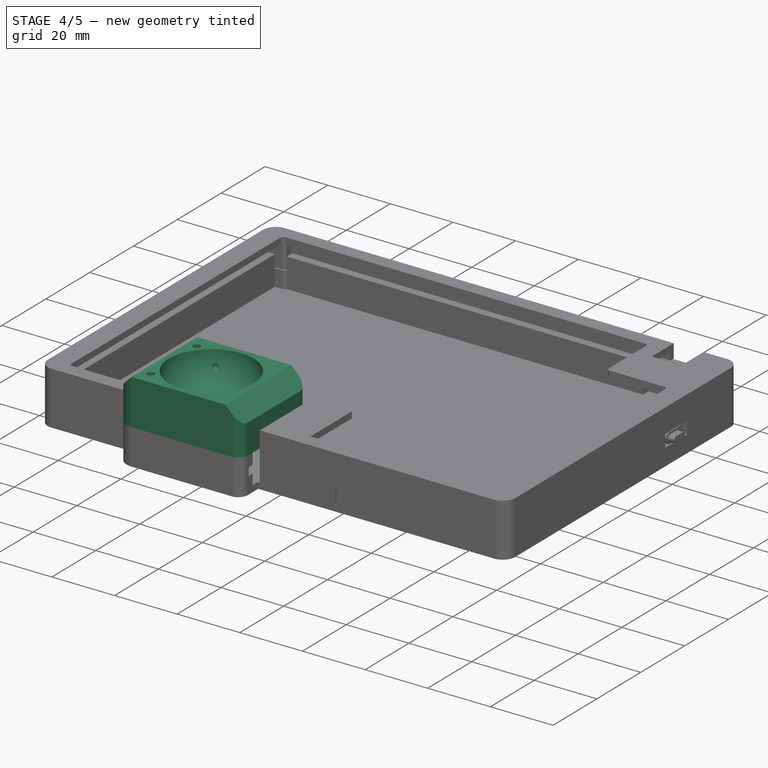
[diagram: stage 4 of 5 — iso view after this stage's code; geometry added in this stage tinted green]
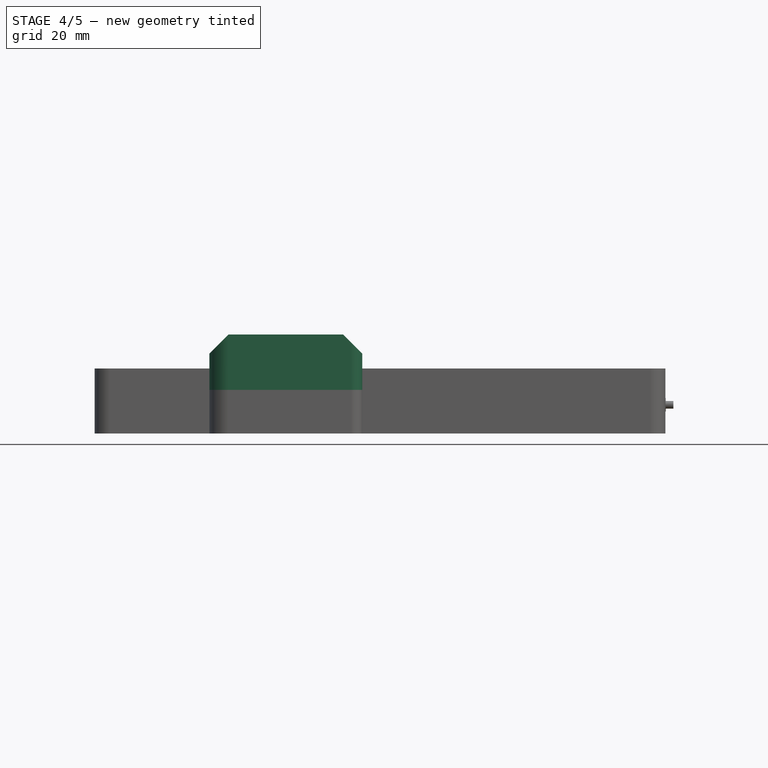
[diagram: stage 4 of 5 — front view after this stage's code; geometry added in this stage tinted green]
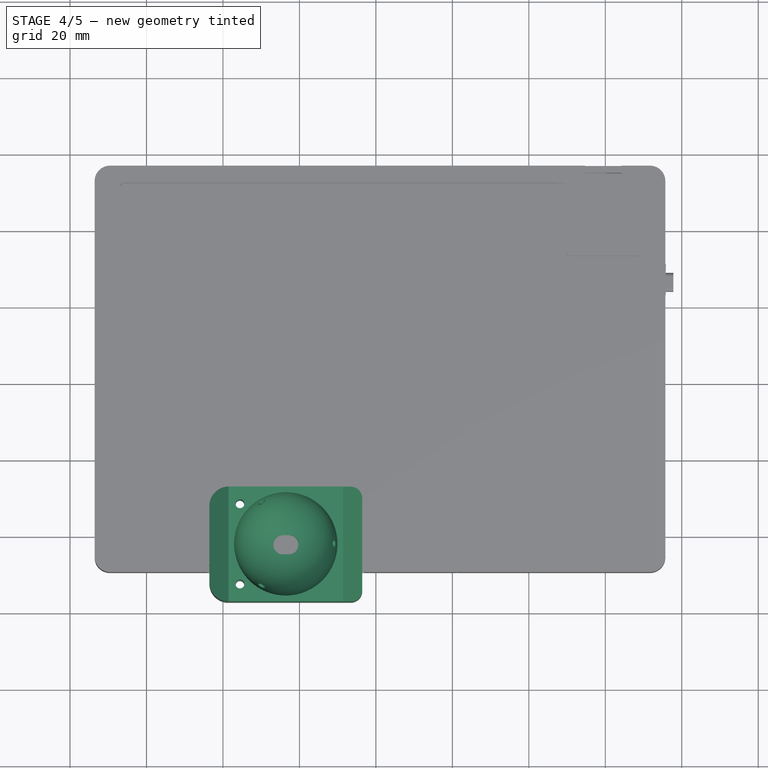
[diagram: stage 4 of 5 — top view after this stage's code; geometry added in this stage tinted green]
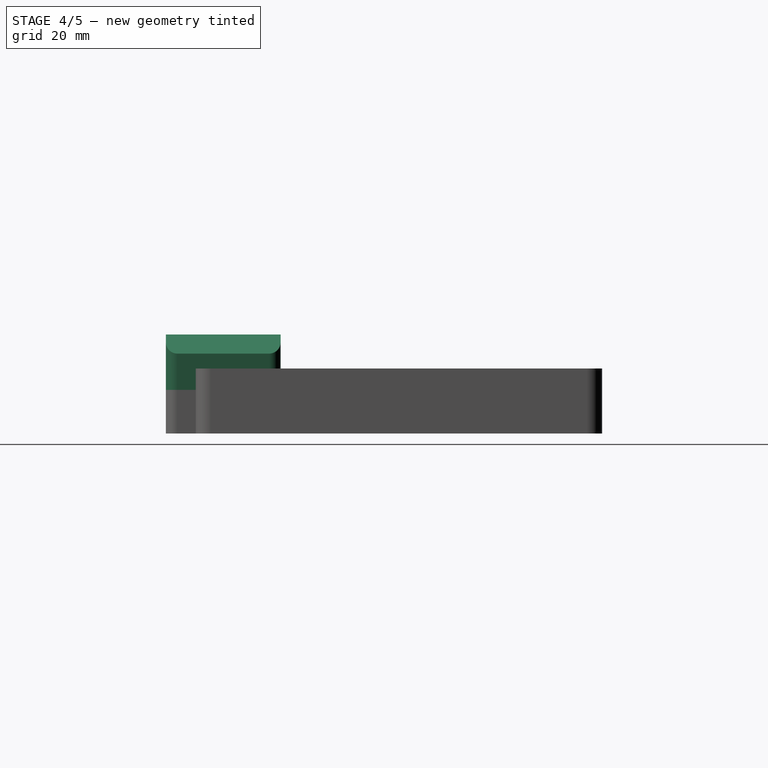
[diagram: stage 4 of 5 — right view after this stage's code; geometry added in this stage tinted green]
FEATURE [PartDesign::Body] Body  label="TrackballCup"
  AllowCompound = false
  Group = -> [Sketch039,Pad020,Sketch042,Groove,Sketch043,Pocket017,DatumPoint,Sphere,DatumLine,PolarPattern,Chamfer002,Fillet003,Fillet004,Sketch044,Pocket018,Sketch045,Pocket019]
  Origin = -> Origin
  Tip = -> Pocket019
FEATURE [Sketcher::SketchObject] Sketch046
  ArcFitTolerance = 1e-06
  AttachmentOffset = pos=(0,0,11.4) rot=(0,0,1;0rad)
  AttachmentSupport = -> [XY_Plane008]
  FullyConstrained = true
  MakeInternals = false
  MapMode = 5
  Placement = pos=(0,0,11.4) rot=(0,0,1;0rad)
  sketch-geometry (4):
    g0: LineSegment StartX=116.44 StartY=-137.19 StartZ=0 EndX=116.44 EndY=-107.19 EndZ=0
    g1: LineSegment StartX=116.44 StartY=-107.19 StartZ=0 EndX=156.44 EndY=-107.19 EndZ=0
    g2: LineSegment StartX=156.44 StartY=-107.19 StartZ=0 EndX=156.44 EndY=-137.19 EndZ=0
    g3: LineSegment StartX=116.44 StartY=-137.19 StartZ=0 EndX=156.44 EndY=-137.19 EndZ=0
  constraints (12):
    c: Coincident(g0,g1)
    c: Horizontal(g1)
    c: Coincident(g1,g2)
    c: Vertical(g2)
    c: Horizontal(g3)
    c: DistanceY(g3,g0) = 30
    c: DistanceX(g0,g1) = 40
    c: DistanceX(g-1,g0) = 116.44
    c: DistanceY(g0,g-1) = 107.19
    c: Coincident(g2,g3)
    c: Coincident(g0,g3)
    c: Vertical(g0)
FEATURE [PartDesign::Pad] Pad021
  Direction = (0,0,1)
  Length = 14.5
  Length2 = 10
  Profile = -> Sketch046
  ReferenceAxis = -> Sketch046 [N_Axis]
  Refine = true
  Suppressed = false
  Type = 0
FEATURE [Sketcher::SketchObject] Sketch047
  ArcFitTolerance = 1e-06
  AttachmentOffset = pos=(0,0,-20) rot=(0,0,1;0rad)
  AttachmentSupport = -> [Pad021]
  ExternalGeometry = -> [Pad021]
  FullyConstrained = true
  MakeInternals = false
  MapMode = 5
  Placement = pos=(136.44,0,0) rot=(0.57735,0.57735,0.57735;2.0944rad)
  sketch-geometry (3):
    g0: ArcOfCircle CenterX=-122.19 CenterY=25.9 CenterZ=0 NormalX=0 NormalY=0 NormalZ=1 AngleXU=0 Radius=13.5 StartAngle=4.71239 EndAngle=6.28319
    g1: LineSegment StartX=-122.19 StartY=25.9 StartZ=0 EndX=-122.19 EndY=12.4 EndZ=0
    g2: LineSegment StartX=-122.19 StartY=25.9 StartZ=0 EndX=-108.69 EndY=25.9 EndZ=0
  constraints (9):
    c: Radius(g0) = 13.5
    c: Angle(g0) = 1.5708
    c: Coincident(g1,g0)
    c: Coincident(g1,g0)
    c: Coincident(g2,g0)
    c: Coincident(g2,g0)
    c: DistanceY(g-3,g0) = 1
    c: Horizontal(g2)
    c: DistanceX(g0,g-4) = 15
FEATURE [PartDesign::Groove] Groove001
  Angle = 360
  Angle2 = 60
  Axis = (0,3.26795e-07,-1)
  Base = (136.44,-122.19,25.9)
  BaseFeature = -> Pad021
  Profile = -> Sketch047
  ReferenceAxis = -> Sketch047 [Edge3]
  Refine = true
  Reversed = true
  Suppressed = false
  Type = 0
FEATURE [PartDesign::Point] DatumPoint001
  AttacherType = Attacher::AttachEnginePoint
  AttachmentSupport = -> [Sketch047]
  MapMode = 39
  Placement = pos=(136.44,-122.19,25.9) rot=(0,0,1;0rad)
FEATURE [PartDesign::SubtractiveSphere] Sphere001
  Angle1 = -90
  Angle2 = 90
  Angle3 = 360
  AttacherType = Attacher::AttachEngine3D
  AttachmentOffset = pos=(12.99,0,-4.92) rot=(0,0,1;0rad)
  AttachmentSupport = -> [DatumPoint001]
  BaseFeature = -> Groove001
  MapMode = 1
  Placement = pos=(149.43,-122.19,20.98) rot=(0,0,1;0rad)
  Radius = 1.1
  Refine = true
  Suppressed = false
FEATURE [PartDesign::Line] DatumLine001
  AttacherType = Attacher::AttachEngineLine
  AttachmentSupport = -> [DatumPoint001]
  Length = 20
  MapMode = 18
  Placement = pos=(136.44,-122.19,25.9) rot=(0,0,1;0rad)
  ResizeMode = 0
FEATURE [PartDesign::PolarPattern] PolarPattern001
  Angle = 360
  Axis = -> DatumLine001
  BaseFeature = -> Sphere001
  Mode = 0
  Occurrences = 3
  Offset = 120
  Originals = -> [Sphere001]
  Placement = pos=(149.43,-122.19,20.98) rot=(0,0,1;0rad)
  Refine = true
  Suppressed = false
  TransformMode = 0
FEATURE [PartDesign::Chamfer] Chamfer003
  Angle = 45
  Base = -> PolarPattern001 [Edge4,Edge12]
  BaseFeature = -> PolarPattern001
  ChamferType = 0
  FlipDirection = false
  Placement = pos=(149.43,-122.19,20.98) rot=(0,0,1;0rad)
  Refine = true
  Size = 5
  Size2 = 1
  SupportTransform = false
  Suppressed = false
  UseAllEdges = false
FEATURE [PartDesign::Fillet] Fillet005
  Base = -> Chamfer003 [Edge4,Edge1]
  BaseFeature = -> Chamfer003
  Placement = pos=(149.43,-122.19,20.98) rot=(0,0,1;0rad)
  Radius = 5
  Refine = true
  SupportTransform = false
  Suppressed = false
  UseAllEdges = false
FEATURE [PartDesign::Fillet] Fillet006
  Base = -> Fillet005 [Edge19,Edge21]
  BaseFeature = -> Fillet005
  Placement = pos=(149.43,-122.19,20.98) rot=(0,0,1;0rad)
  Radius = 3
  Refine = true
  SupportTransform = false
  Suppressed = false
  UseAllEdges = false
FEATURE [Sketcher::SketchObject] Sketch048
  ArcFitTolerance = 1e-06
  AttachmentSupport = -> [Fillet006]
  ExternalGeometry = -> [Fillet006]
  FullyConstrained = true
  MakeInternals = false
  MapMode = 5
  Placement = pos=(149.43,-122.19,25.9) rot=(0,0,1;0rad)
  sketch-geometry (6):
    g0: ArcOfCircle CenterX=-13.74 CenterY=2e-16 CenterZ=0 NormalX=0 NormalY=0 NormalZ=1 AngleXU=0 Radius=2.5 StartAngle=1.5708 EndAngle=4.71239
    g1: ArcOfCircle CenterX=-12.24 CenterY=0 CenterZ=0 NormalX=0 NormalY=0 NormalZ=1 AngleXU=0 Radius=2.5 StartAngle=4.71239 EndAngle=7.85398
    g2: LineSegment StartX=-13.74 StartY=2.5 StartZ=0 EndX=-12.24 EndY=2.5 EndZ=0
    g3: LineSegment StartX=-13.74 StartY=-2.5 StartZ=0 EndX=-12.24 EndY=-2.5 EndZ=0
    g4: LineSegment [constr] StartX=-13.74 StartY=2e-16 StartZ=0 EndX=-12.24 EndY=0 EndZ=0
    g5: GeomPoint [constr] X=-12.99 Y=1e-16 Z=0
  constraints (13):
    c: Tangent(g0,g2) = 1.5708
    c: Tangent(g0,g3) = -1.5708
    c: Tangent(g1,g2) = 1.5708
    c: Tangent(g1,g3) = -1.5708
    c: Equal(g0,g1)
    c: Distance(g1,g1) = 5
    c: Coincident(g4,g0)
    c: Coincident(g4,g1)
    c: Symmetric(g4,g4,g5)
    c: Distance(g0,g1) = 1.5
    c: Horizontal(g3)
    c: DistanceY(g5,g-3) = 15
    c: DistanceX(g5,g-4) = 20
FEATURE [PartDesign::Pocket] Pocket020
  BaseFeature = -> Fillet006
  Direction = (0,0,-1)
  Length = 14.5
  Length2 = 5
  Placement = pos=(149.43,-122.19,20.98) rot=(0,0,1;0rad)
  Profile = -> Sketch048
  ReferenceAxis = -> Sketch048 [N_Axis]
  Refine = true
  Suppressed = false
  Type = 0
FEATURE [Sketcher::SketchObject] Sketch049
  ArcFitTolerance = 1e-06
  AttachmentSupport = -> [Pocket020]
  ExternalGeometry = -> [Pocket020]
  FullyConstrained = true
  MakeInternals = false
  MapMode = 5
  Placement = pos=(149.43,-122.19,25.9) rot=(0,0,1;0rad)
  sketch-geometry (2):
    g0: Circle CenterX=-24.99 CenterY=10.5 CenterZ=0 NormalX=0 NormalY=0 NormalZ=1 AngleXU=0 Radius=1.15
    g1: Circle CenterX=-24.99 CenterY=-10.5 CenterZ=0 NormalX=0 NormalY=0 NormalZ=1 AngleXU=0 Radius=1.15
  constraints (6):
    c: Diameter(g0) = 2.3
    c: Diameter(g1) = 2.3
    c: DistanceY(g0,g-3) = 4.5
    c: DistanceX(g-4,g0) = 8
    c: DistanceX(g-4,g1) = 8
    c: DistanceY(g-5,g1) = 4.5
FEATURE [PartDesign::Pocket] Pocket021
  BaseFeature = -> Pocket020
  Direction = (0,0,-1)
  Length = 14.5
  Length2 = 5
  Placement = pos=(149.43,-122.19,20.98) rot=(0,0,1;0rad)
  Profile = -> Sketch049
  ReferenceAxis = -> Sketch049 [N_Axis]
  Refine = true
  Suppressed = false
  Type = 0
FEATURE [Sketcher::SketchObject] Sketch055
  ArcFitTolerance = 1e-06
  AttachmentSupport = -> [Pocket023]
  ExternalGeometry = -> [Pocket023]
  FullyConstrained = true
  MakeInternals = false
  MapMode = 5
  Placement = pos=(1.395e-13,-48.1,0) rot=(0,0.707107,0.707107;3.14159rad)
  sketch-geometry (4):
    g0: LineSegment StartX=-231.45 StartY=7.4 StartZ=0 EndX=-233.9 EndY=7.4 EndZ=0
    g1: LineSegment StartX=-233.9 StartY=7.4 StartZ=0 EndX=-233.9 EndY=2 EndZ=0
    g2: LineSegment StartX=-233.9 StartY=2 StartZ=0 EndX=-231.45 EndY=2 EndZ=0
    g3: LineSegment StartX=-231.45 StartY=2 StartZ=0 EndX=-231.45 EndY=7.4 EndZ=0
  constraints (10):
    c: Coincident(g0,g1)
    c: Coincident(g1,g2)
    c: Coincident(g2,g3)
    c: Coincident(g3,g0)
    c: Horizontal(g0)
    c: Horizontal(g2)
    c: Vertical(g1)
    c: Vertical(g3)
    c: Coincident(g0,g-4)
    c: Coincident(g1,g-3)
FEATURE [PartDesign::Pocket] Pocket024
  BaseFeature = -> Pocket023
  Direction = (2.9e-15,-1,2e-16)
  Length = 12.87
  Length2 = 5
  Profile = -> Sketch055
  ReferenceAxis = -> Sketch055 [N_Axis]
  Refine = true
  Suppressed = false
  Type = 0
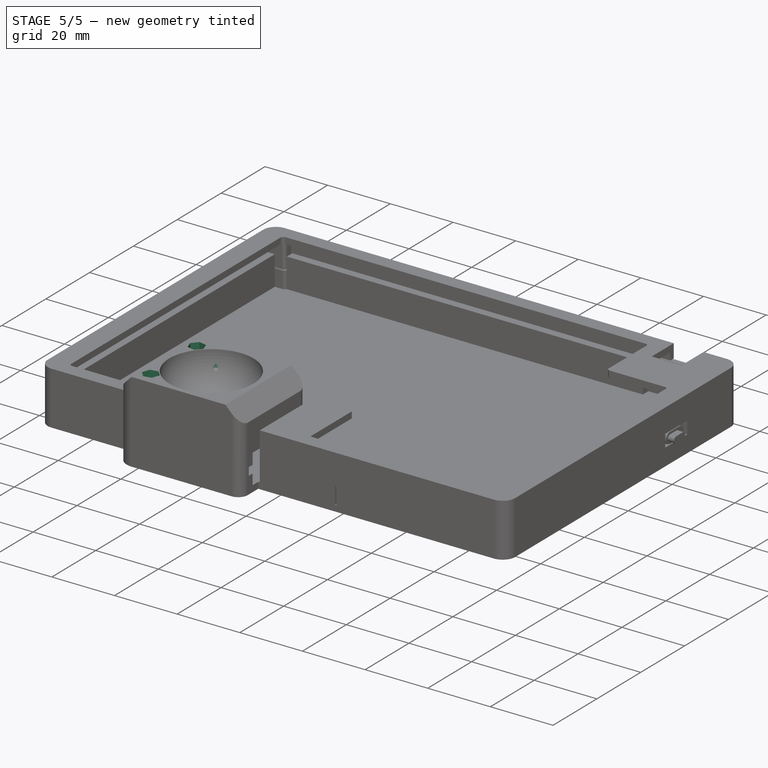
[diagram: stage 5 of 5 — iso view after this stage's code; geometry added in this stage tinted green]
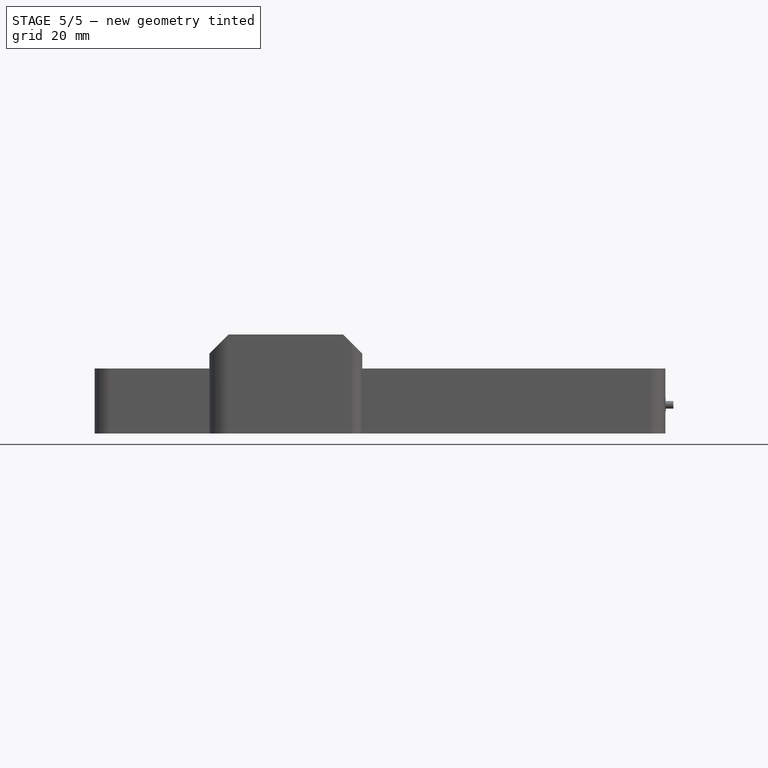
[diagram: stage 5 of 5 — front view after this stage's code; geometry added in this stage tinted green]
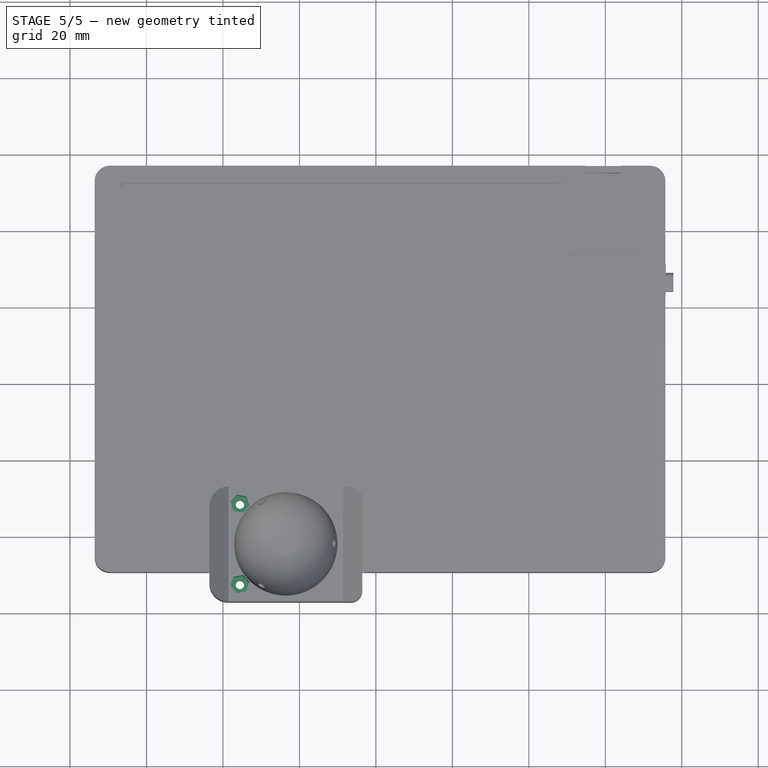
[diagram: stage 5 of 5 — top view after this stage's code; geometry added in this stage tinted green]
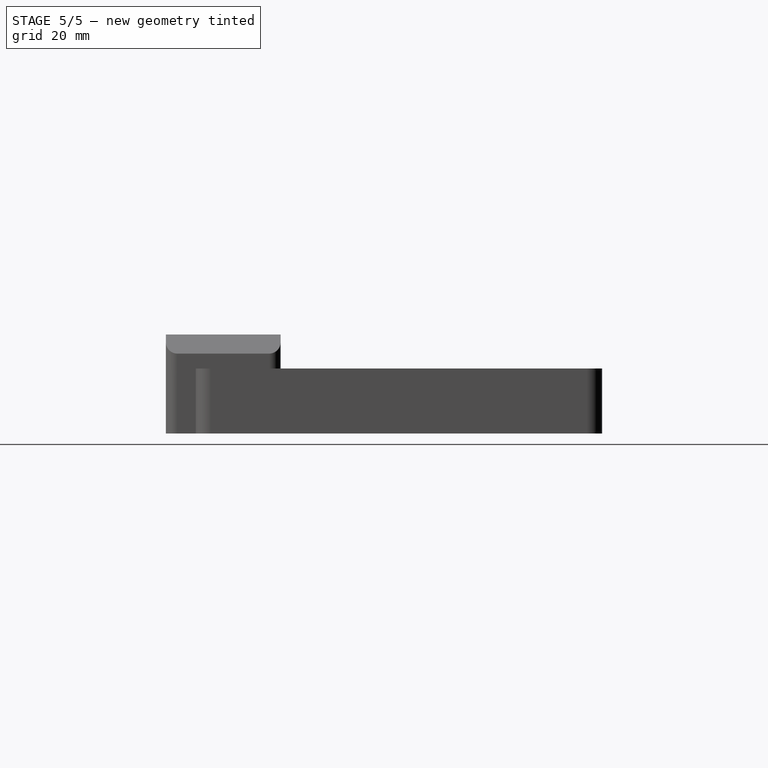
[diagram: stage 5 of 5 — right view after this stage's code; geometry added in this stage tinted green]
FEATURE [Sketcher::SketchObject] Sketch039
  ArcFitTolerance = 1e-06
  AttachmentOffset = pos=(0,0,11.4) rot=(0,0,1;0rad)
  AttachmentSupport = -> [XY_Plane]
  FullyConstrained = true
  MakeInternals = false
  MapMode = 5
  Placement = pos=(0,0,11.4) rot=(0,0,1;0rad)
  sketch-geometry (4):
    g0: LineSegment StartX=116.44 StartY=-137.19 StartZ=0 EndX=116.44 EndY=-107.19 EndZ=0
    g1: LineSegment StartX=116.44 StartY=-107.19 StartZ=0 EndX=156.44 EndY=-107.19 EndZ=0
    g2: LineSegment StartX=156.44 StartY=-107.19 StartZ=0 EndX=156.44 EndY=-137.19 EndZ=0
    g3: LineSegment StartX=116.44 StartY=-137.19 StartZ=0 EndX=156.44 EndY=-137.19 EndZ=0
  constraints (12):
    c: Coincident(g0,g1)
    c: Horizontal(g1)
    c: Coincident(g1,g2)
    c: Vertical(g2)
    c: Horizontal(g3)
    c: DistanceY(g3,g0) = 30
    c: DistanceX(g0,g1) = 40
    c: DistanceX(g-1,g0) = 116.44
    c: DistanceY(g0,g-1) = 107.19
    c: Coincident(g2,g3)
    c: Coincident(g0,g3)
    c: Vertical(g0)
FEATURE [PartDesign::Pad] Pad020
  Direction = (0,0,1)
  Length = 13.5
  Length2 = 10
  Profile = -> Sketch039
  ReferenceAxis = -> Sketch039 [N_Axis]
  Refine = true
  Suppressed = false
  Type = 0
FEATURE [Sketcher::SketchObject] Sketch042
  ArcFitTolerance = 1e-06
  AttachmentOffset = pos=(0,0,-20) rot=(0,0,1;0rad)
  FullyConstrained = true
  MakeInternals = false
  MapMode = 5
  Placement = pos=(136.44,0,0) rot=(0.57735,0.57735,0.57735;2.0944rad)
  sketch-geometry (3):
    g0: ArcOfCircle CenterX=-122.19 CenterY=24.9 CenterZ=0 NormalX=0 NormalY=0 NormalZ=1 AngleXU=0 Radius=13.5 StartAngle=4.71239 EndAngle=6.28319
    g1: LineSegment StartX=-122.19 StartY=24.9 StartZ=0 EndX=-122.19 EndY=11.4 EndZ=0
    g2: LineSegment StartX=-122.19 StartY=24.9 StartZ=0 EndX=-108.69 EndY=24.9 EndZ=0
  constraints (8):
    c: Radius(g0) = 13.5
    c: Angle(g0) = 1.5708
    c: Symmetric(g-3,g-3,g0)
    c: PointOnObject(g0,g-3)
    c: Coincident(g1,g0)
    c: Coincident(g1,g0)
    c: Coincident(g2,g0)
    c: Coincident(g2,g0)
FEATURE [PartDesign::Groove] Groove
  Angle = 360
  Angle2 = 60
  Axis = (1e-16,3.26795e-07,-1)
  Base = (136.44,-122.19,24.9)
  BaseFeature = -> Pad020
  Profile = -> Sketch042
  ReferenceAxis = -> Sketch042 [Edge3]
  Refine = true
  Reversed = true
  Suppressed = false
  Type = 0
FEATURE [Sketcher::SketchObject] Sketch043
  ArcFitTolerance = 1e-06
  AttachmentSupport = -> [Groove]
  ExternalGeometry = -> [Groove]
  FullyConstrained = true
  MakeInternals = false
  MapMode = 5
  Placement = pos=(0,0,24.9) rot=(0,0,1;0rad)
  sketch-geometry (6):
    g0: ArcOfCircle CenterX=135.69 CenterY=-122.19 CenterZ=0 NormalX=0 NormalY=0 NormalZ=1 AngleXU=0 Radius=2.5 StartAngle=1.5708 EndAngle=4.71239
    g1: ArcOfCircle CenterX=137.19 CenterY=-122.19 CenterZ=0 NormalX=0 NormalY=0 NormalZ=1 AngleXU=0 Radius=2.5 StartAngle=4.71239 EndAngle=7.85398
    g2: LineSegment StartX=135.69 StartY=-119.69 StartZ=0 EndX=137.19 EndY=-119.69 EndZ=0
    g3: LineSegment StartX=135.69 StartY=-124.69 StartZ=0 EndX=137.19 EndY=-124.69 EndZ=0
    g4: LineSegment [constr] StartX=135.69 StartY=-122.19 StartZ=0 EndX=137.19 EndY=-122.19 EndZ=0
    g5: GeomPoint [constr] X=136.44 Y=-122.19 Z=0
  constraints (13):
    c: Tangent(g0,g2) = 1.5708
    c: Tangent(g0,g3) = -1.5708
    c: Tangent(g1,g2) = 1.5708
    c: Tangent(g1,g3) = -1.5708
    c: Equal(g0,g1)
    c: Distance(g1,g1) = 5
    c: Coincident(g4,g0)
    c: Coincident(g4,g1)
    c: Symmetric(g4,g4,g5)
    c: Distance(g0,g1) = 1.5
    c: Horizontal(g3)
    c: DistanceX(g5,g-4) = 20
    c: DistanceY(g5,g-3) = 15
FEATURE [PartDesign::Pocket] Pocket017
  BaseFeature = -> Groove
  Direction = (0,0,-1)
  Length = 14
  Length2 = 5
  Profile = -> Sketch043
  ReferenceAxis = -> Sketch043 [N_Axis]
  Refine = true
  Suppressed = false
  Type = 0
FEATURE [PartDesign::Point] DatumPoint
  AttacherType = Attacher::AttachEnginePoint
  AttachmentSupport = -> [Pocket017]
  MapMode = 37
  Placement = pos=(136.44,-122.19,24.9) rot=(0,0,1;0rad)
FEATURE [PartDesign::SubtractiveSphere] Sphere
  Angle1 = -88
  Angle2 = 90
  Angle3 = 360
  AttacherType = Attacher::AttachEngine3D
  AttachmentOffset = pos=(12.99,0,-4.92) rot=(0,0,1;0rad)
  AttachmentSupport = -> [DatumPoint]
  BaseFeature = -> Pocket017
  MapMode = 1
  Placement = pos=(149.43,-122.19,19.98) rot=(0,0,1;0rad)
  Radius = 1.1
  Refine = true
  Suppressed = false
FEATURE [PartDesign::Line] DatumLine
  AttacherType = Attacher::AttachEngineLine
  AttachmentSupport = -> [DatumPoint]
  Length = 20
  MapMode = 18
  Placement = pos=(136.44,-122.19,24.9) rot=(0,0,1;0rad)
  ResizeMode = 0
FEATURE [PartDesign::PolarPattern] PolarPattern
  Angle = 360
  Axis = -> DatumLine
  BaseFeature = -> Sphere
  Mode = 0
  Occurrences = 3
  Offset = 120
  Originals = -> [Sphere]
  Placement = pos=(149.43,-122.19,19.98) rot=(0,0,1;0rad)
  Refine = true
  Suppressed = false
  TransformMode = 0
FEATURE [PartDesign::Chamfer] Chamfer002
  Angle = 45
  Base = -> PolarPattern [Edge4,Edge16]
  BaseFeature = -> PolarPattern
  ChamferType = 0
  FlipDirection = false
  Placement = pos=(149.43,-122.19,19.98) rot=(0,0,1;0rad)
  Refine = true
  Size = 5
  Size2 = 1
  SupportTransform = false
  Suppressed = false
  UseAllEdges = false
FEATURE [PartDesign::Fillet] Fillet003
  Base = -> Chamfer002 [Edge1,Edge4]
  BaseFeature = -> Chamfer002
  Placement = pos=(149.43,-122.19,19.98) rot=(0,0,1;0rad)
  Radius = 5
  Refine = true
  SupportTransform = false
  Suppressed = false
  UseAllEdges = false
FEATURE [PartDesign::Fillet] Fillet004
  Base = -> Fillet003 [Edge23,Edge25]
  BaseFeature = -> Fillet003
  Placement = pos=(149.43,-122.19,19.98) rot=(0,0,1;0rad)
  Radius = 3
  Refine = true
  SupportTransform = false
  Suppressed = false
  UseAllEdges = false
FEATURE [Sketcher::SketchObject] Sketch044
  ArcFitTolerance = 1e-06
  AttachmentSupport = -> [Fillet004]
  ExternalGeometry = -> [Fillet004]
  FullyConstrained = true
  MakeInternals = false
  MapMode = 5
  Placement = pos=(149.43,-122.19,24.9) rot=(0,0,1;0rad)
  sketch-geometry (2):
    g0: Circle CenterX=-24.99 CenterY=10.5 CenterZ=0 NormalX=0 NormalY=0 NormalZ=1 AngleXU=0 Radius=1.1
    g1: Circle CenterX=-24.99 CenterY=-10.5 CenterZ=0 NormalX=0 NormalY=0 NormalZ=1 AngleXU=0 Radius=1.1
  constraints (6):
    c: Diameter(g0) = 2.2
    c: Diameter(g1) = 2.2
    c: DistanceY(g0,g-3) = 4.5
    c: DistanceX(g-4,g0) = 8
    c: DistanceX(g-4,g1) = 8
    c: DistanceY(g-5,g1) = 4.5
FEATURE [PartDesign::Pocket] Pocket018
  BaseFeature = -> Fillet004
  Direction = (0,0,-1)
  Length = 13.5
  Length2 = 5
  Placement = pos=(149.43,-122.19,19.98) rot=(0,0,1;0rad)
  Profile = -> Sketch044
  ReferenceAxis = -> Sketch044 [N_Axis]
  Refine = true
  Suppressed = false
  Type = 0
FEATURE [Sketcher::SketchObject] Sketch045
  ArcFitTolerance = 1e-06
  AttachmentSupport = -> [Pocket018]
  ExternalGeometry = -> [Pocket018,DatumPoint]
  FullyConstrained = true
  MakeInternals = false
  MapMode = 5
  Placement = pos=(149.43,-122.19,24.9) rot=(0,0,1;0rad)
  sketch-geometry (16):
    g0: LineSegment StartX=-22.5375 StartY=10.015 StartZ=0 EndX=-23.3437 EndY=12.3814 EndZ=0
    g1: LineSegment StartX=-23.3437 StartY=12.3814 StartZ=0 EndX=-25.7962 EndY=12.8664 EndZ=0
    g2: LineSegment StartX=-25.7962 StartY=12.8664 StartZ=0 EndX=-27.4425 EndY=10.985 EndZ=0
    g3: LineSegment StartX=-27.4425 StartY=10.985 StartZ=0 EndX=-26.6363 EndY=8.61856 EndZ=0
    g4: LineSegment StartX=-26.6363 StartY=8.61856 StartZ=0 EndX=-24.1838 EndY=8.13357 EndZ=0
    g5: LineSegment StartX=-24.1838 StartY=8.13357 StartZ=0 EndX=-22.5375 EndY=10.015 EndZ=0
    g6: Circle [constr] CenterX=-24.99 CenterY=10.5 CenterZ=0 NormalX=0 NormalY=0 NormalZ=1 AngleXU=0 Radius=2.5
    g7: LineSegment StartX=-22.5375 StartY=-10.015 StartZ=0 EndX=-24.1838 EndY=-8.13357 EndZ=0
    g8: LineSegment StartX=-24.1838 StartY=-8.13357 StartZ=0 EndX=-26.6363 EndY=-8.61856 EndZ=0
    g9: LineSegment StartX=-26.6363 StartY=-8.61856 StartZ=0 EndX=-27.4425 EndY=-10.985 EndZ=0
    g10: LineSegment StartX=-27.4425 StartY=-10.985 StartZ=0 EndX=-25.7962 EndY=-12.8664 EndZ=0
    g11: LineSegment StartX=-25.7962 StartY=-12.8664 StartZ=0 EndX=-23.3437 EndY=-12.3814 EndZ=0
    g12: LineSegment StartX=-23.3437 StartY=-12.3814 StartZ=0 EndX=-22.5375 EndY=-10.015 EndZ=0
    g13: Circle [constr] CenterX=-24.99 CenterY=-10.5 CenterZ=0 NormalX=0 NormalY=0 NormalZ=1 AngleXU=0 Radius=2.5
    g14: LineSegment [constr] StartX=-24.99 StartY=10.5 StartZ=0 EndX=-12.99 EndY=-8e-16 EndZ=0
    g15: LineSegment [constr] StartX=-24.99 StartY=-10.5 StartZ=0 EndX=-12.99 EndY=-6e-16 EndZ=0
  constraints (34):
    c: Coincident(g0,g1)
    c: Coincident(g1,g2)
    c: Coincident(g2,g3)
    c: Coincident(g3,g4)
    c: Coincident(g4,g5)
    c: Coincident(g5,g0)
    c: Equal(g0, g1-g5) x5
    c: PointOnObject(g0,g6)
    c: PointOnObject(g1,g6)
    c: PointOnObject(g2,g6)
    c: PointOnObject(g3,g6)
    c: PointOnObject(g4,g6)
    c: Radius(g6) = 2.5
    c: Coincident(g6,g-3)
    c: Coincident(g7,g8)
    c: Coincident(g8,g9)
    c: Coincident(g9,g10)
    c: Coincident(g10,g11)
    c: Coincident(g11,g12)
    c: Coincident(g12,g7)
    c: Equal(g7, g8-g12) x5
    c: PointOnObject(g7,g13)
    c: PointOnObject(g8,g13)
    c: PointOnObject(g9,g13)
    c: PointOnObject(g10,g13)
    c: PointOnObject(g11,g13)
    c: Radius(g13) = 2.5
    c: Coincident(g13,g-4)
    c: Coincident(g14,g6)
    c: Coincident(g14,g-5)
    c: Symmetric(g4,g0,g14)
    c: Coincident(g15,g13)
    c: Coincident(g15,g14)
    c: Symmetric(g7,g7,g15)
FEATURE [PartDesign::Pocket] Pocket019
  BaseFeature = -> Pocket018
  Direction = (0,0,-1)
  Length = 12
  Length2 = 5
  Placement = pos=(149.43,-122.19,19.98) rot=(0,0,1;0rad)
  Profile = -> Sketch045
  ReferenceAxis = -> Sketch045 [N_Axis]
  Refine = true
  Suppressed = false
  Type = 0
FEATURE [Sketcher::SketchObject] Sketch050
  ArcFitTolerance = 1e-06
  AttachmentSupport = -> [Pocket021]
  ExternalGeometry = -> [Pocket021]
  FullyConstrained = true
  MakeInternals = false
  MapMode = 5
  Placement = pos=(149.43,-122.19,25.9) rot=(0,0,1;0rad)
  sketch-geometry (16):
    g0: LineSegment StartX=-22.5375 StartY=10.015 StartZ=0 EndX=-23.3437 EndY=12.3814 EndZ=0
    g1: LineSegment StartX=-23.3437 StartY=12.3814 StartZ=0 EndX=-25.7962 EndY=12.8664 EndZ=0
    g2: LineSegment StartX=-25.7962 StartY=12.8664 StartZ=0 EndX=-27.4425 EndY=10.985 EndZ=0
    g3: LineSegment StartX=-27.4425 StartY=10.985 StartZ=0 EndX=-26.6363 EndY=8.61856 EndZ=0
    g4: LineSegment StartX=-26.6363 StartY=8.61856 StartZ=0 EndX=-24.1838 EndY=8.13357 EndZ=0
    g5: LineSegment StartX=-24.1838 StartY=8.13357 StartZ=0 EndX=-22.5375 EndY=10.015 EndZ=0
    g6: Circle [constr] CenterX=-24.99 CenterY=10.5 CenterZ=0 NormalX=0 NormalY=0 NormalZ=1 AngleXU=0 Radius=2.5
    g7: LineSegment StartX=-22.5375 StartY=-10.015 StartZ=0 EndX=-24.1838 EndY=-8.13357 EndZ=0
    g8: LineSegment StartX=-24.1838 StartY=-8.13357 StartZ=0 EndX=-26.6363 EndY=-8.61856 EndZ=0
    g9: LineSegment StartX=-26.6363 StartY=-8.61856 StartZ=0 EndX=-27.4425 EndY=-10.985 EndZ=0
    g10: LineSegment StartX=-27.4425 StartY=-10.985 StartZ=0 EndX=-25.7962 EndY=-12.8664 EndZ=0
    g11: LineSegment StartX=-25.7962 StartY=-12.8664 StartZ=0 EndX=-23.3437 EndY=-12.3814 EndZ=0
    g12: LineSegment StartX=-23.3437 StartY=-12.3814 StartZ=0 EndX=-22.5375 EndY=-10.015 EndZ=0
    g13: Circle [constr] CenterX=-24.99 CenterY=-10.5 CenterZ=0 NormalX=0 NormalY=0 NormalZ=1 AngleXU=0 Radius=2.5
    g14: LineSegment [constr] StartX=-24.99 StartY=10.5 StartZ=0 EndX=-12.99 EndY=1.4333e-12 EndZ=0
    g15: LineSegment [constr] StartX=-24.99 StartY=-10.5 StartZ=0 EndX=-12.99 EndY=1.4353e-12 EndZ=0
  constraints (34):
    c: Coincident(g0,g1)
    c: Coincident(g1,g2)
    c: Coincident(g2,g3)
    c: Coincident(g3,g4)
    c: Coincident(g4,g5)
    c: Coincident(g5,g0)
    c: Equal(g0, g1-g5) x5
    c: PointOnObject(g0,g6)
    c: PointOnObject(g1,g6)
    c: PointOnObject(g2,g6)
    c: PointOnObject(g3,g6)
    c: PointOnObject(g4,g6)
    c: Radius(g6) = 2.5
    c: Coincident(g6,g-4)
    c: Coincident(g7,g8)
    c: Coincident(g8,g9)
    c: Coincident(g9,g10)
    c: Coincident(g10,g11)
    c: Coincident(g11,g12)
    c: Coincident(g12,g7)
    c: Equal(g7, g8-g12) x5
    c: PointOnObject(g7,g13)
    c: PointOnObject(g8,g13)
    c: PointOnObject(g9,g13)
    c: PointOnObject(g10,g13)
    c: PointOnObject(g11,g13)
    c: Radius(g13) = 2.5
    c: Coincident(g13,g-5)
    c: Coincident(g14,g6)
    c: Coincident(g14,g-3)
    c: Coincident(g15,g13)
    c: Coincident(g15,g14)
    c: Symmetric(g7,g7,g15)
    c: Symmetric(g0,g4,g14)
FEATURE [PartDesign::Pocket] Pocket022
  BaseFeature = -> Pocket021
  Direction = (0,0,-1)
  Length = 12.5
  Length2 = 5
  Placement = pos=(149.43,-122.19,20.98) rot=(0,0,1;0rad)
  Profile = -> Sketch050
  ReferenceAxis = -> Sketch050 [N_Axis]
  Refine = true
  Suppressed = false
  Type = 0
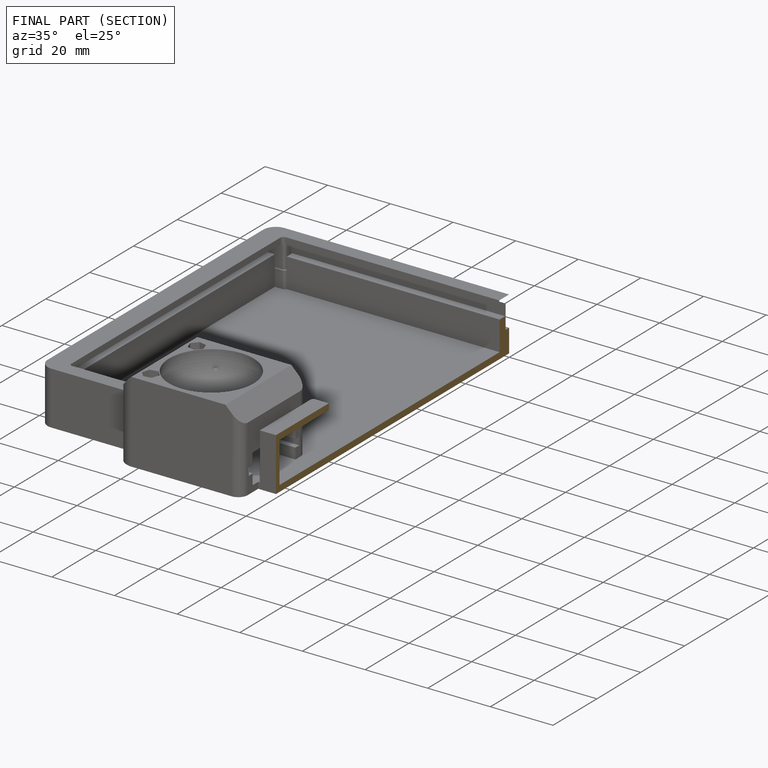
[diagram: finished part — half-section view (interior)]
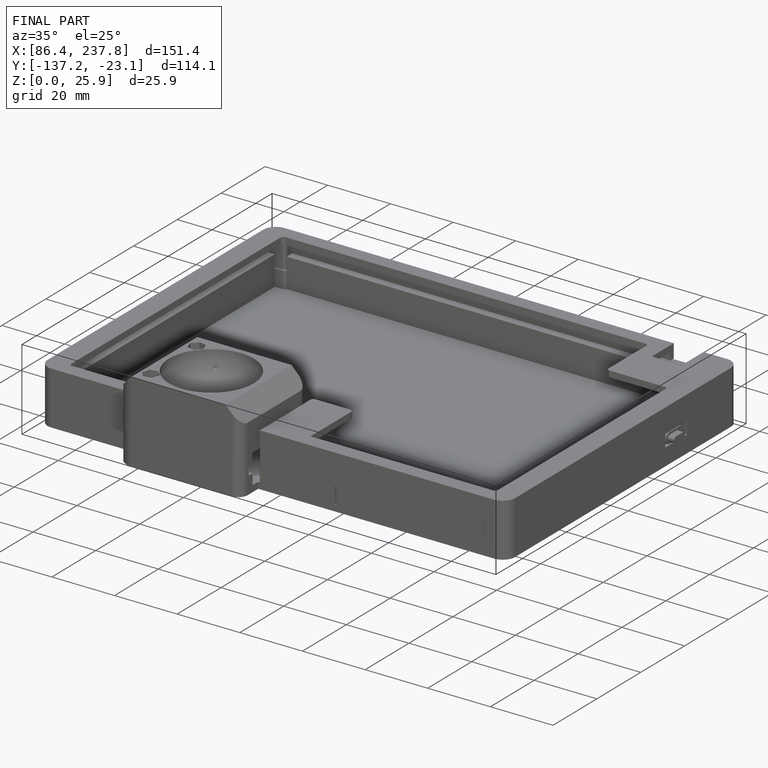
[diagram: finished part — iso view with bounding-box wireframe]
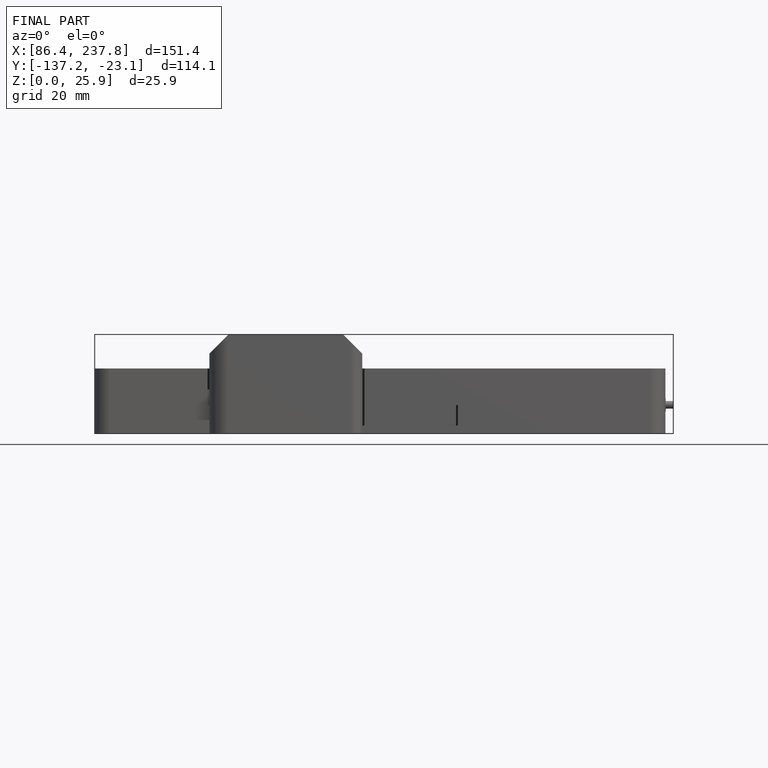
[diagram: finished part — front view with bounding-box wireframe]
